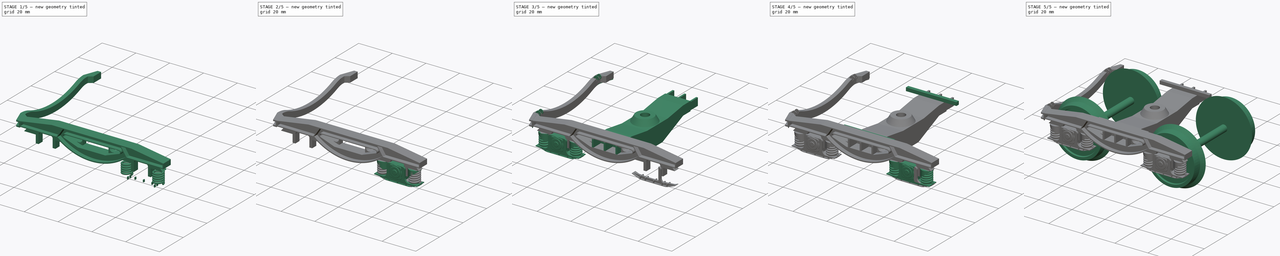
[diagram: build sequence overview — one tinted view per stage of 5, left to right]
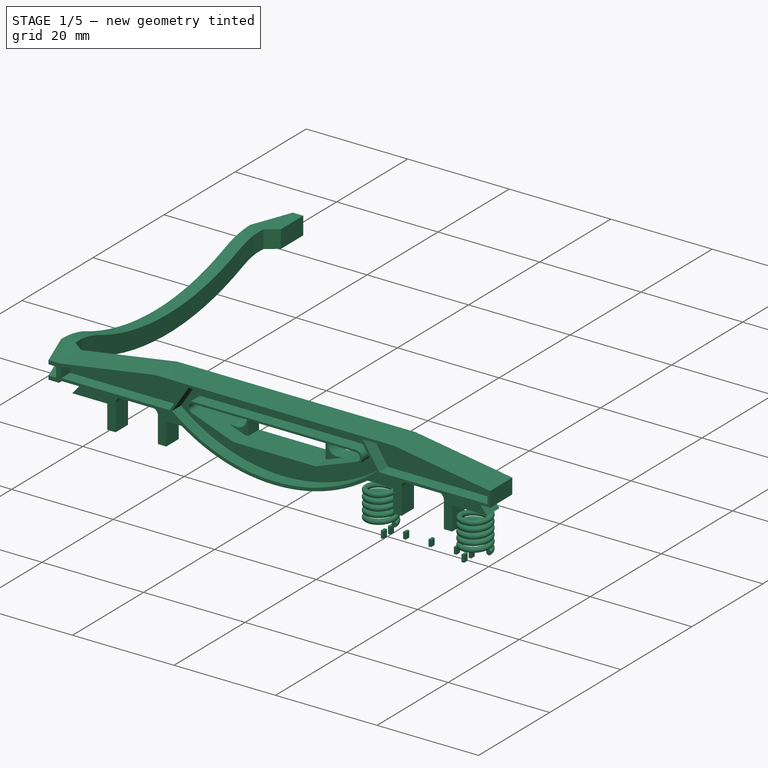
[diagram: stage 1 of 5 — iso view after this stage's code; geometry added in this stage tinted green]
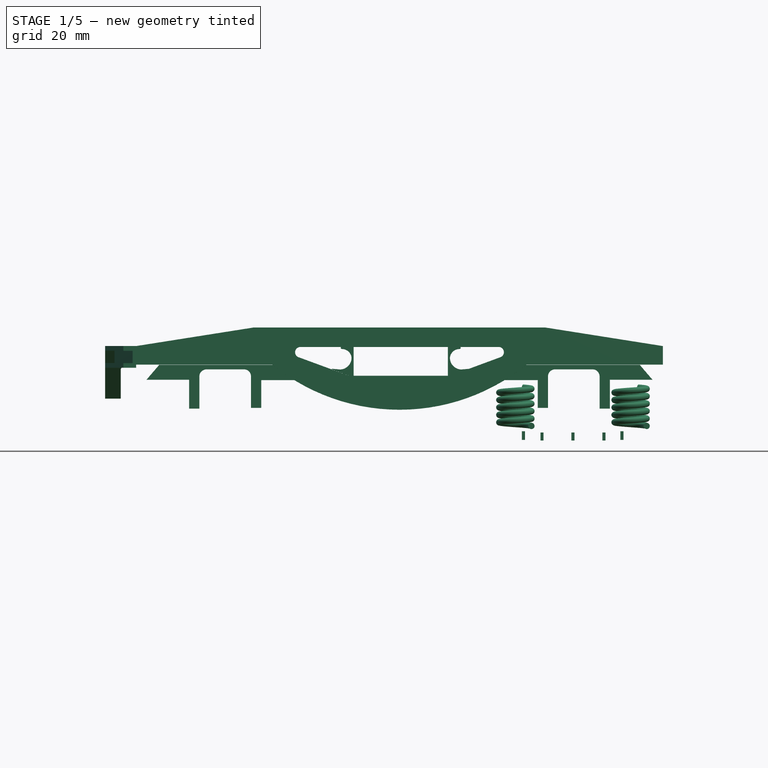
[diagram: stage 1 of 5 — front view after this stage's code; geometry added in this stage tinted green]
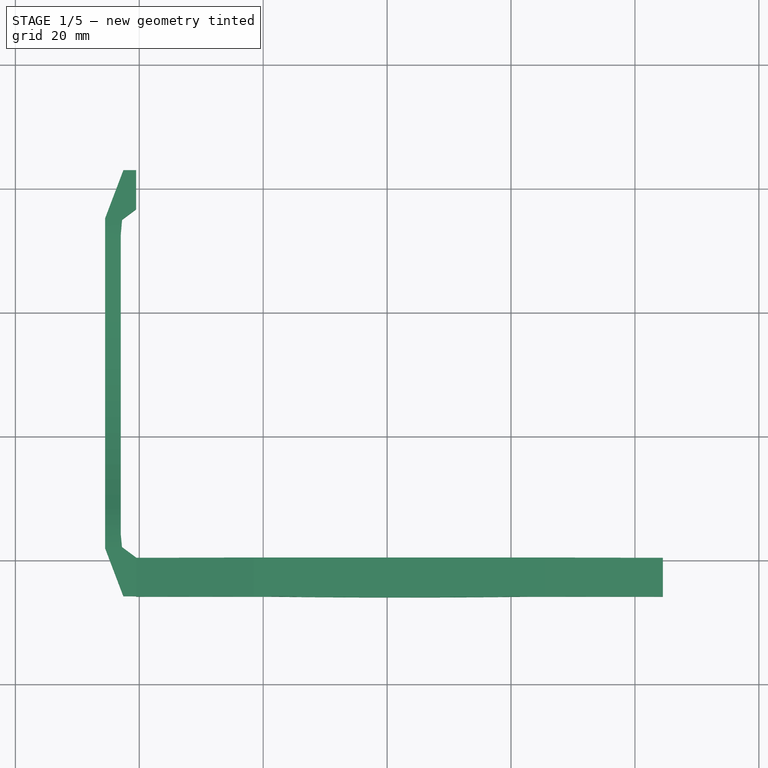
[diagram: stage 1 of 5 — top view after this stage's code; geometry added in this stage tinted green]
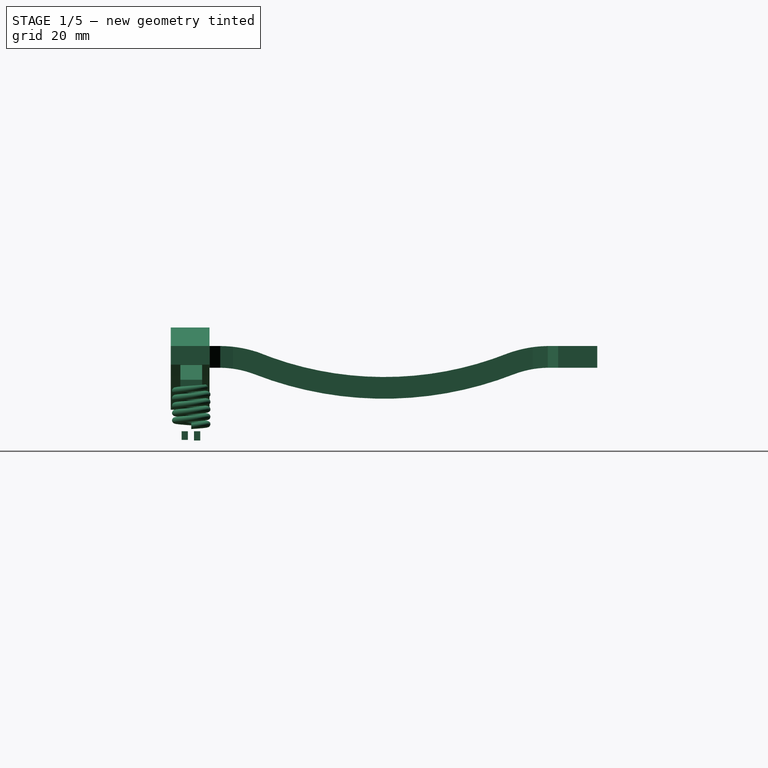
[diagram: stage 1 of 5 — right view after this stage's code; geometry added in this stage tinted green]
FCSTD DOCUMENT  (FreeCAD 0.20R29177 +426 (Git))
Label: Y25 gauge1 scale V3
License: All rights reserved
LicenseURL: http://en.wikipedia.org/wiki/All_rights_reserved
objects: Part::Cylinder×39, Part::Extrusion×32, Part::MultiFuse×24, Part::Box×24, Part::Cut×22, Sketcher::SketchObject×20, Part::Fillet×8, Part::Revolution×5, Part::Helix×4, Part::Sweep×4, Image::ImagePlane×3, Part::FeaturePython×1
note: 183 computed .brp shape members not serialized (recipe doc carries the construction recipe); baked Part::Feature solids carry a one-line shape summary decoded from their .brp

FEATURE [Sketcher::SketchObject] Sketch011
  FullyConstrained = false
  sketch-geometry (14):
    g0: LineSegment StartX=22 StartY=-7.1e-15 StartZ=0 EndX=0 EndY=-7.1e-15 EndZ=0
    g1: LineSegment StartX=0 StartY=-7.1e-15 StartZ=0 EndX=0 EndY=3 EndZ=0
    g2: LineSegment StartX=0 StartY=3 StartZ=0 EndX=19 EndY=6 EndZ=0
    g3: LineSegment StartX=19 StartY=6 StartZ=0 EndX=66 EndY=6 EndZ=0
    g4: LineSegment StartX=66 StartY=6 StartZ=0 EndX=85 EndY=3 EndZ=0
    g5: LineSegment StartX=85 StartY=3 StartZ=0 EndX=85 EndY=7.1e-15 EndZ=0
    g6: LineSegment StartX=85 StartY=7.1e-15 StartZ=0 EndX=63 EndY=7.1e-15 EndZ=0
    g7: LineSegment StartX=26.5 StartY=2.85 StartZ=0 EndX=58.5 EndY=2.85 EndZ=0
    g8: LineSegment StartX=58.8578 StartY=1.22897 StartZ=0 EndX=50.6614 EndY=-1.8 EndZ=0
    g9: LineSegment StartX=50.6614 StartY=-1.8 StartZ=0 EndX=34.364 EndY=-1.8 EndZ=0
    g10: LineSegment StartX=34.364 StartY=-1.8 StartZ=0 EndX=26.164 EndY=1.21922 EndZ=0
    g11: ArcOfCircle CenterX=26.5 CenterY=2 CenterZ=0 NormalX=0 NormalY=0 NormalZ=1 AngleXU=0 Radius=0.85 StartAngle=1.5708 EndAngle=4.30603
    g12: ArcOfCircle CenterX=58.5 CenterY=2 CenterZ=0 NormalX=0 NormalY=0 NormalZ=1 AngleXU=0 Radius=0.85 StartAngle=5.14685 EndAngle=7.85398
    g13: ArcOfCircle CenterX=42.5 CenterY=25.219 CenterZ=0 NormalX=0 NormalY=0 NormalZ=1 AngleXU=0 Radius=32.5 StartAngle=4.02984 EndAngle=5.39493
  constraints (42):
    c: Horizontal(g0)
    c: Coincident(g0,g1)
    c: Vertical(g1)
    c: Coincident(g1,g2)
    c: Coincident(g2,g3)
    c: Horizontal(g3)
    c: Coincident(g3,g4)
    c: Coincident(g4,g5)
    c: Vertical(g5)
    c: Coincident(g5,g6)
    c: Horizontal(g6)
    c: DistanceY(g0,g1) = 3
    c: DistanceX(g0,g0) = 22
    c: DistanceX(g1,g2) = 19
    c: DistanceY(g1,g2) = 3
    c: DistanceX(g2,g3) = 47
    c: DistanceX(g0,g6) = 41
    c: Equal(g1,g5)
    c: Coincident(g-1,g0)
    c: Horizontal(g7)
    c: Coincident(g8,g9)
    c: Horizontal(g9)
    c: Coincident(g9,g10)
    c: Coincident(g11,g7)
    c: Coincident(g11,g10)
    c: Coincident(g12,g7)
    c: Coincident(g12,g8)
    c: Radius(g11) = 0.85
    c: DistanceX(g7,g7) = 32
    c: Vertical(g11,g7)
    c: Vertical(g12,g7)
    c: Equal(g10,g8)
    c: Radius(g12) = 0.85
    c: DistanceY(g9,g7) = 4.65
    c: DistanceX(g0,g11) = 26.5
    c: DistanceY(g0,g11) = 2
    c: Equal(g0,g6)
    c: Coincident(g13,g0)
    c: Coincident(g13,g6)
    c: Radius(g13) = 32.5
    c: DistanceX(g0,g13) = 42.5
    c: DistanceX(g10,g9) = 8.2
FEATURE [Part::Extrusion] Extrude019
  Base = -> Sketch011
  Dir = (0,0,1)
  DirMode = 2
  FaceMakerClass = Part::FaceMakerBullseye
  LengthFwd = 6.25
  LengthRev = 0
  Solid = true
  Symmetric = false
FEATURE [Sketcher::SketchObject] Sketch012  label="Sketch_Side_Cut"
  FullyConstrained = false
  sketch-geometry (20):
    g0: LineSegment StartX=26.5 StartY=3.25 StartZ=0 EndX=58.5 EndY=3.25 EndZ=0
    g1: LineSegment StartX=59 StartY=0.854356 StartZ=0 EndX=50.5 EndY=-2.39564 EndZ=0
    g2: LineSegment StartX=50.5 StartY=-2.39564 StartZ=0 EndX=34.5 EndY=-2.39564 EndZ=0
    g3: LineSegment StartX=34.5 StartY=-2.39564 StartZ=0 EndX=26 EndY=0.854356 EndZ=0
    g4: ArcOfCircle CenterX=26.5 CenterY=2 CenterZ=0 NormalX=0 NormalY=0 NormalZ=1 AngleXU=0 Radius=1.25 StartAngle=1.5708 EndAngle=4.30087
    g5: ArcOfCircle CenterX=58.5 CenterY=2 CenterZ=0 NormalX=0 NormalY=0 NormalZ=1 AngleXU=0 Radius=1.25 StartAngle=5.12391 EndAngle=7.85398
    g6: ArcOfCircle CenterX=42.5 CenterY=25.25 CenterZ=0 NormalX=0 NormalY=0 NormalZ=1 AngleXU=0 Radius=31.9153 StartAngle=4.02908 EndAngle=5.39569
    g7: LineSegment StartX=22.35 StartY=0.5 StartZ=0 EndX=25.6 EndY=5.5 EndZ=0
    g8: LineSegment StartX=25.6 StartY=5.5 StartZ=0 EndX=59.35 EndY=5.5 EndZ=0
    g9: LineSegment StartX=59.35 StartY=5.5 StartZ=0 EndX=62.65 EndY=0.5 EndZ=0
    g10: LineSegment StartX=21.85 StartY=0.5 StartZ=0 EndX=0.5 EndY=0.5 EndZ=0
    g11: LineSegment StartX=0.5 StartY=0.5 StartZ=0 EndX=0.5 EndY=2.5 EndZ=0
    g12: LineSegment StartX=0.5 StartY=2.5 StartZ=0 EndX=19 EndY=5.5 EndZ=0
    g13: LineSegment StartX=19 StartY=5.5 StartZ=0 EndX=25.0686 EndY=5.5 EndZ=0
    g14: LineSegment StartX=25.0686 StartY=5.5 StartZ=0 EndX=21.85 EndY=0.5 EndZ=0
    g15: LineSegment StartX=63.15 StartY=0.5 StartZ=0 EndX=59.8973 EndY=5.5 EndZ=0
    g16: LineSegment StartX=59.8973 StartY=5.5 StartZ=0 EndX=66 EndY=5.5 EndZ=0
    g17: LineSegment StartX=66 StartY=5.5 StartZ=0 EndX=84.5 EndY=2.5 EndZ=0
    g18: LineSegment StartX=84.5 StartY=2.5 StartZ=0 EndX=84.5 EndY=0.5 EndZ=0
    g19: LineSegment StartX=84.5 StartY=0.5 StartZ=0 EndX=63.15 EndY=0.5 EndZ=0
  constraints (61):
    c: Horizontal(g0)
    c: Coincident(g1,g2)
    c: Horizontal(g2)
    c: Coincident(g2,g3)
    c: Coincident(g4,g0)
    c: Coincident(g4,g3)
    c: Coincident(g5,g0)
    c: Coincident(g5,g1)
    c: Radius(g4) = 1.25
    c: DistanceX(g0,g0) = 32
    c: DistanceX(g3,g2) = 8.5
    c: DistanceY(g2,g3) = 3.25
    c: DistanceX(g2,g1) = 16
    c: Equal(g4,g5)
    c: Vertical(g4,g0)
    c: Vertical(g5,g0)
    c: Equal(g3,g1)
    c: DistanceX(g3,g4) = 0.5
    c: DistanceX(g-1,g4) = 26.5
    c: DistanceY(g-1,g4) = 2
    c: DistanceX(g-1,g6) = 42.5
    c: DistanceY(g-1,g6) = 25.25
    c: DistanceX(g6,g6) = 40.3
    c: Coincident(g7,g6)
    c: Coincident(g8,g7)
    c: Horizontal(g8)
    c: Coincident(g9,g8)
    c: Coincident(g9,g6)
    c: DistanceX(g-1,g7) = 25.6
    c: DistanceX(g7,g8) = 33.75
    c: DistanceY(g6,g7) = 5
    c: DistanceX(g-1,g6) = 22.35
    c: DistanceY(g-1,g6) = 0.5
    c: Horizontal(g10)
    c: Coincident(g10,g11)
    c: Vertical(g11)
    c: Coincident(g11,g12)
    c: Coincident(g12,g13)
    c: Horizontal(g13)
    c: Coincident(g13,g14)
    c: Coincident(g14,g10)
    c: DistanceX(g-1,g10) = 0.5
    c: DistanceY(g-1,g10) = 0.5
    c: DistanceY(g10,g11) = 2
    c: DistanceX(g10,g10) = 21.35
    c: DistanceX(g11,g12) = 18.5
    c: Horizontal(g13,g7)
    c: Coincident(g15,g16)
    c: Horizontal(g16)
    c: Coincident(g16,g17)
    c: Coincident(g17,g18)
    c: Vertical(g18)
    c: Coincident(g18,g19)
    c: Coincident(g19,g15)
    c: Horizontal(g19)
    c: DistanceX(g6,g15) = 0.5
    c: DistanceX(g15,g18) = 21.35
    c: DistanceY(g18,g17) = 2
    c: DistanceX(g16,g17) = 18.5
    c: Horizontal(g6,g15)
    c: Horizontal(g8,g15)
FEATURE [Part::Extrusion] Extrude020
  Base = -> Sketch012
  Dir = (0,0,1)
  DirMode = 2
  FaceMakerClass = Part::FaceMakerBullseye
  LengthFwd = 2.5
  LengthRev = 0
  Placement = pos=(0,0,3.75) rot=(0,0,1;0rad)
  Solid = true
  Symmetric = false
FEATURE [Part::Cut] Cut036  label="Seitenträger"
  Base = -> Extrude019
  Placement = pos=(-0.5,-59.8,-1.3e-14) rot=(1,0,0;1.5708rad)
  Tool = -> Extrude020
FEATURE [Part::Extrusion] Extrude027
  Base = -> Sketch019
  Dir = (0,-1,2e-16)
  DirMode = 2
  FaceMakerClass = Part::FaceMakerBullseye
  LengthFwd = 3.5
  LengthRev = 0
  Placement = pos=(0.12,-61,0) rot=(0,0,1;0rad)
  Solid = true
  Symmetric = false
FEATURE [Image::ImagePlane] ImagePlane001
  Placement = pos=(42,-32,-6.4) rot=(-1,0,0;4.71239rad)
  XSize = 101.263
  YSize = 32.1199
FEATURE [Image::ImagePlane] ImagePlane002
  Placement = pos=(0,-31.7,-6.5) rot=(0.57735,0.57735,0.57735;2.0944rad)
  XSize = 74.9263
  YSize = 32.6743
FEATURE [Part::Extrusion] Extrude034
  Base = -> Sketch019
  Dir = (0,-1,2e-16)
  DirMode = 2
  FaceMakerClass = Part::FaceMakerBullseye
  LengthFwd = 3.5
  LengthRev = 0
  Placement = pos=(83.88,-64.6,0) rot=(0,0,1;3.14159rad)
  Solid = true
  Symmetric = false
FEATURE [Part::MultiFuse] Fusion034  label="Seite"
  Shapes = -> [Cut036,Extrude027,Extrude034]
FEATURE [Part::Box] Box048  label="Cube048"
  AttacherType = Attacher::AttachEngine3D
  Height = 1.4
  Length = 0.5
  Placement = pos=(61.75,-64.3,-12.15) rot=(0,0,1;0rad)
  Width = 1
FEATURE [Part::Box] Box049  label="Cube049"
  AttacherType = Attacher::AttachEngine3D
  Height = 1.4
  Length = 0.5
  Placement = pos=(77.65,-64.3,-12.15) rot=(0,0,1;0rad)
  Width = 1
FEATURE [Part::Box] Box050  label="Cube050"
  AttacherType = Attacher::AttachEngine3D
  Height = 1.3
  Length = 0.5
  Placement = pos=(69.75,-64.4,-12.25) rot=(0,0,1;0rad)
  Width = 1
FEATURE [Part::Box] Box051  label="Cube051"
  AttacherType = Attacher::AttachEngine3D
  Height = 1.3
  Length = 0.5
  Placement = pos=(64.75,-64.4,-12.25) rot=(0,0,1;0rad)
  Width = 1
FEATURE [Part::Box] Box052  label="Cube052"
  AttacherType = Attacher::AttachEngine3D
  Height = 1.3
  Length = 0.5
  Placement = pos=(74.75,-64.4,-12.25) rot=(0,0,1;0rad)
  Width = 1
FEATURE [Part::Box] Box053  label="Cube053"
  AttacherType = Attacher::AttachEngine3D
  Height = 1.4
  Length = 0.5
  Placement = pos=(61.75,-64.4,-12.15) rot=(0,0,1;0rad)
  Width = 1
FEATURE [Part::Box] Box054  label="Cube054"
  AttacherType = Attacher::AttachEngine3D
  Height = 1.4
  Length = 0.5
  Placement = pos=(77.65,-64.4,-12.15) rot=(0,0,1;0rad)
  Width = 1
FEATURE [Part::MultiFuse] Fusion050
  Placement = pos=(0,2.1,0) rot=(0,0,1;0rad)
  Shapes = -> [Box050,Box051,Box052,Box053,Box054]
FEATURE [Part::Helix] Helix004
  Angle = 0
  AttacherType = Attacher::AttachEngine3D
  Height = 6.2
  LocalCoord = 0
  Pitch = 1.2
  Radius = 2.6
  SegmentLength = 0
  Style = 1
FEATURE [Part::Helix] Helix005
  Angle = 0
  AttacherType = Attacher::AttachEngine3D
  Height = 6.2
  LocalCoord = 0
  Pitch = 1.2
  Radius = 2.6
  SegmentLength = 0
  Style = 1
FEATURE [Sketcher::SketchObject] Sketch030
  FullyConstrained = true
  Placement = pos=(0,0,0) rot=(1,0,0;1.5708rad)
  sketch-geometry (1):
    g0: Circle CenterX=2.6 CenterY=0 CenterZ=0 NormalX=0 NormalY=0 NormalZ=1 AngleXU=0 Radius=0.5
  constraints (3):
    c: PointOnObject(g0,g-1)
    c: DistanceX(g-1,g0) = 2.6
    c: Radius(g0) = 0.5
FEATURE [Part::Sweep] Sweep004
  Frenet = true
  Placement = pos=(60.7,-62.75,-9.9) rot=(0,0,1;0rad)
  Sections = -> [Sketch030]
  Solid = true
  Spine = -> Helix004 [Edge1]
  Transition = 1
FEATURE [Part::Sweep] Sweep005
  Frenet = true
  Placement = pos=(79.3,-62.75,-9.9) rot=(0,0,1;0rad)
  Sections = -> [Sketch014]
  Solid = true
  Spine = -> Helix005 [Edge1]
  Transition = 1
FEATURE [Sketcher::SketchObject] Sketch033
  FullyConstrained = false
  Placement = pos=(0,0,0) rot=(0.57735,0.57735,0.57735;2.0944rad)
  sketch-geometry (12):
    g0: ArcOfCircle CenterX=-31.699 CenterY=52.0031 CenterZ=0 NormalX=0 NormalY=0 NormalZ=1 AngleXU=0 Radius=57.5 StartAngle=4.34212 EndAngle=5.08585
    g1: LineSegment StartX=-5.32403 StartY=-0.496866 StartZ=0 EndX=2.67597 EndY=-0.496866 EndZ=0
    g2: LineSegment StartX=2.67597 StartY=-0.496866 StartZ=0 EndX=2.67597 EndY=3.00313 EndZ=0
    g3: LineSegment StartX=2.67597 StartY=3.00313 StartZ=0 EndX=-5.32403 EndY=3.00313 EndZ=0
    g4: LineSegment StartX=-58.074 StartY=-0.496866 StartZ=0 EndX=-66.074 EndY=-0.496866 EndZ=0
    g5: LineSegment StartX=-66.074 StartY=-0.496866 StartZ=0 EndX=-66.074 EndY=3.00313 EndZ=0
    g6: LineSegment StartX=-66.074 StartY=3.00313 StartZ=0 EndX=-58.074 EndY=3.00313 EndZ=0
    g7: ArcOfCircle CenterX=-31.699 CenterY=52.0031 CenterZ=0 NormalX=0 NormalY=0 NormalZ=1 AngleXU=0 Radius=54 StartAngle=4.3252 EndAngle=5.08837
    g8: ArcOfCircle CenterX=-58.4166 CenterY=-16.8268 CenterZ=0 NormalX=0 NormalY=0 NormalZ=1 AngleXU=0 Radius=16.3335 StartAngle=1.20053 EndAngle=1.54982
    g9: ArcOfCircle CenterX=-5.00787 CenterY=-16.7101 CenterZ=0 NormalX=0 NormalY=0 NormalZ=1 AngleXU=0 Radius=16.2163 StartAngle=1.59029 EndAngle=1.93083
    g10: ArcOfCircle CenterX=-58.3015 CenterY=-16.7214 CenterZ=0 NormalX=0 NormalY=0 NormalZ=1 AngleXU=0 Radius=19.7258 StartAngle=1.25038 EndAngle=1.55926
    g11: ArcOfCircle CenterX=-5.02273 CenterY=-16.67 CenterZ=0 NormalX=0 NormalY=0 NormalZ=1 AngleXU=0 Radius=19.6754 StartAngle=1.58611 EndAngle=1.92629
  constraints (31):
    c: Coincident(g1,g2)
    c: Vertical(g2)
    c: Coincident(g2,g3)
    c: Horizontal(g3)
    c: Coincident(g4,g5)
    c: Vertical(g5)
    c: Coincident(g5,g6)
    c: Horizontal(g6)
    c: Horizontal(g4)
    c: Horizontal(g1)
    c: DistanceX(g5,g2) = 68.75
    c: DistanceX(g5,g6) = 8
    c: DistanceX(g3,g2) = 8
    c: Radius(g0) = 57.5
    c: DistanceY(g4,g5) = 3.5
    c: DistanceY(g1,g2) = 3.5
    c: DistanceX(g0,g2) = 34.375
    c: Coincident(g7,g0)
    c: Radius(g7) = 54
    c: Equal(g3,g1)
    c: Equal(g6,g4)
    c: Horizontal(g5,g2)
    c: Coincident(g8,g4)
    c: DistanceY(g5,g0) = 49
    c: Tangent(g8,g0) = 1.5708
    c: Coincident(g9,g0)
    c: Coincident(g9,g1)
    c: Coincident(g10,g6)
    c: Coincident(g10,g7)
    c: Coincident(g11,g7)
    c: Coincident(g11,g3)
FEATURE [Part::Extrusion] Extrude057
  Base = -> Sketch033
  Dir = (1,0,0)
  DirMode = 2
  FaceMakerClass = Part::FaceMakerBullseye
  LengthFwd = 5
  LengthRev = 0
  Placement = pos=(-5.5,0.1,0.15) rot=(0,0,1;0rad)
  Solid = true
  Symmetric = false
FEATURE [Sketcher::SketchObject] Sketch036
  FullyConstrained = false
  sketch-geometry (6):
    g0: LineSegment StartX=-0.489114 StartY=-59.7656 StartZ=0 EndX=-2.78506 EndY=-58.0656 EndZ=0
    g1: LineSegment StartX=-2.78506 StartY=-58.0656 StartZ=0 EndX=-2.98911 EndY=-56.0069 EndZ=0
    g2: LineSegment StartX=-2.98911 StartY=-56.0069 StartZ=0 EndX=-2.98911 EndY=-7.60614 EndZ=0
    g3: LineSegment StartX=-2.98911 StartY=-7.60614 StartZ=0 EndX=-2.77235 EndY=-5.21561 EndZ=0
    g4: LineSegment StartX=-2.77235 StartY=-5.21561 StartZ=0 EndX=-0.489114 EndY=-3.51561 EndZ=0
    g5: LineSegment StartX=-0.489114 StartY=-3.51561 StartZ=0 EndX=-0.489114 EndY=-59.7656 EndZ=0
  constraints (12):
    c: Coincident(g0,g1)
    c: Coincident(g1,g2)
    c: Vertical(g2)
    c: Coincident(g2,g3)
    c: Coincident(g3,g4)
    c: Coincident(g4,g5)
    c: Coincident(g5,g0)
    c: Vertical(g5)
    c: DistanceY(g0,g4) = 56.25
    c: DistanceY(g0,g0) = 1.7
    c: DistanceY(g3,g4) = 1.7
    c: DistanceX(g1,g0) = 2.5
FEATURE [Part::Extrusion] Extrude060
  Base = -> Sketch036
  Dir = (0,0,1)
  DirMode = 2
  FaceMakerClass = Part::FaceMakerBullseye
  LengthFwd = 10
  LengthRev = 0
  Placement = pos=(0,0,-6) rot=(0,0,1;0rad)
  Solid = true
  Symmetric = false
FEATURE [Sketcher::SketchObject] Sketch038
  FullyConstrained = false
  Placement = pos=(0,0,0) rot=(0.57735,0.57735,0.57735;2.0944rad)
  sketch-geometry (12):
    g0: ArcOfCircle CenterX=-31.615 CenterY=51.4197 CenterZ=0 NormalX=0 NormalY=0 NormalZ=1 AngleXU=0 Radius=56 StartAngle=4.33963 EndAngle=5.08903
    g1: LineSegment StartX=-5.24003 StartY=0.419738 StartZ=0 EndX=2.75997 EndY=0.419738 EndZ=0
    g2: LineSegment StartX=2.75997 StartY=0.419738 StartZ=0 EndX=2.75997 EndY=2.41974 EndZ=0
    g3: LineSegment StartX=2.75997 StartY=2.41974 StartZ=0 EndX=-5.24003 EndY=2.41974 EndZ=0
    g4: LineSegment StartX=-57.99 StartY=0.419738 StartZ=0 EndX=-65.99 EndY=0.419738 EndZ=0
    g5: LineSegment StartX=-65.99 StartY=0.419738 StartZ=0 EndX=-65.99 EndY=2.41974 EndZ=0
    g6: LineSegment StartX=-65.99 StartY=2.41974 StartZ=0 EndX=-57.99 EndY=2.41974 EndZ=0
    g7: ArcOfCircle CenterX=-31.615 CenterY=51.4197 CenterZ=0 NormalX=0 NormalY=0 NormalZ=1 AngleXU=0 Radius=54 StartAngle=4.32784 EndAngle=5.0807
    g8: ArcOfCircle CenterX=-58.1341 CenterY=-16.3976 CenterZ=0 NormalX=0 NormalY=0 NormalZ=1 AngleXU=0 Radius=16.818 StartAngle=1.19804 EndAngle=1.56223
    g9: ArcOfCircle CenterX=-5.21037 CenterY=-15.8108 CenterZ=0 NormalX=0 NormalY=0 NormalZ=1 AngleXU=0 Radius=16.2306 StartAngle=1.57262 EndAngle=1.93676
    g10: ArcOfCircle CenterX=-58.0701 CenterY=-16.2866 CenterZ=0 NormalX=0 NormalY=0 NormalZ=1 AngleXU=0 Radius=18.7065 StartAngle=1.23311 EndAngle=1.56652
    g11: ArcOfCircle CenterX=-5.1284 CenterY=-16.2634 CenterZ=0 NormalX=0 NormalY=0 NormalZ=1 AngleXU=0 Radius=18.6834 StartAngle=1.57677 EndAngle=1.9574
  constraints (31):
    c: Coincident(g1,g2)
    c: Vertical(g2)
    c: Coincident(g2,g3)
    c: Horizontal(g3)
    c: Coincident(g4,g5)
    c: Vertical(g5)
    c: Coincident(g5,g6)
    c: Horizontal(g6)
    c: Horizontal(g4)
    c: Horizontal(g1)
    c: DistanceX(g5,g2) = 68.75
    c: DistanceX(g5,g6) = 8
    c: DistanceX(g3,g2) = 8
    c: DistanceY(g4,g5) = 2
    c: DistanceX(g0,g2) = 34.375
    c: Coincident(g7,g0)
    c: Radius(g7) = 54
    c: Equal(g3,g1)
    c: Equal(g6,g4)
    c: Horizontal(g5,g2)
    c: Coincident(g8,g4)
    c: DistanceY(g5,g0) = 49
    c: Tangent(g8,g0) = 1.5708
    c: Coincident(g9,g0)
    c: Coincident(g9,g1)
    c: Coincident(g10,g6)
    c: Coincident(g10,g7)
    c: Coincident(g11,g7)
    c: Coincident(g11,g3)
    c: Radius(g0) = 56
    c: DistanceY(g1,g2) = 2
FEATURE [Part::Extrusion] Extrude063
  Base = -> Sketch038
  Dir = (1,0,0)
  DirMode = 2
  FaceMakerClass = Part::FaceMakerBullseye
  LengthFwd = 3
  LengthRev = 0
  Placement = pos=(-7,0,0) rot=(0,0,1;0rad)
  Solid = true
  Symmetric = false
FEATURE [Part::Cut] Cut060
  Base = -> Extrude057
  Tool = -> Extrude060
FEATURE [Part::Cut] Cut061
  Base = -> Cut060
  Tool = -> Extrude063
FEATURE [Sketcher::SketchObject] Sketch039
  FullyConstrained = false
  sketch-geometry (3):
    g0: LineSegment StartX=-0.523418 StartY=-66.074 StartZ=0 EndX=-3.58877 EndY=-58.006 EndZ=0
    g1: LineSegment StartX=-3.58877 StartY=-58.006 StartZ=0 EndX=-3.58877 EndY=-66.074 EndZ=0
    g2: LineSegment StartX=-3.58877 StartY=-66.074 StartZ=0 EndX=-0.523418 EndY=-66.074 EndZ=0
  constraints (5):
    c: Coincident(g0,g1)
    c: Vertical(g1)
    c: Coincident(g1,g2)
    c: Coincident(g2,g0)
    c: Horizontal(g2)
FEATURE [Part::Extrusion] Extrude064
  Base = -> Sketch039
  Dir = (0,0,1)
  DirMode = 2
  FaceMakerClass = Part::FaceMakerBullseye
  LengthFwd = 5
  LengthRev = 0
  Placement = pos=(-2,0,-1) rot=(0,0,1;0rad)
  Solid = true
  Symmetric = false
FEATURE [Part::Extrusion] Extrude066
  Base = -> Sketch039
  Dir = (0,0,1)
  DirMode = 2
  FaceMakerClass = Part::FaceMakerBullseye
  LengthFwd = 5
  LengthRev = 0
  Placement = pos=(-2,-63.2,3.5) rot=(1,0,0;3.14159rad)
  Solid = true
  Symmetric = false
FEATURE [Sketcher::SketchObject] Sketch037
  FullyConstrained = false
  sketch-geometry (3):
    g0: LineSegment StartX=-0.523418 StartY=-66.074 StartZ=0 EndX=-3.58877 EndY=-58.006 EndZ=0
    g1: LineSegment StartX=-3.58877 StartY=-58.006 StartZ=0 EndX=-3.58877 EndY=-66.074 EndZ=0
    g2: LineSegment StartX=-3.58877 StartY=-66.074 StartZ=0 EndX=-0.523418 EndY=-66.074 EndZ=0
  constraints (5):
    c: Coincident(g0,g1)
    c: Vertical(g1)
    c: Coincident(g1,g2)
    c: Coincident(g2,g0)
    c: Horizontal(g2)
FEATURE [Part::Extrusion] Extrude061
  Base = -> Sketch037
  Dir = (0,0,1)
  DirMode = 2
  FaceMakerClass = Part::FaceMakerBullseye
  LengthFwd = 2
  LengthRev = 0
  Placement = pos=(-0.5,0,0.4) rot=(0,0,1;0rad)
  Solid = true
  Symmetric = false
FEATURE [Part::Extrusion] Extrude065
  Base = -> Sketch037
  Dir = (0,0,1)
  DirMode = 2
  FaceMakerClass = Part::FaceMakerBullseye
  LengthFwd = 2
  LengthRev = 0
  Placement = pos=(-0.5,-63.2,2.45) rot=(1,0,0;3.14159rad)
  Solid = true
  Symmetric = false
FEATURE [Part::MultiFuse] Fusion055
  Shapes = -> [Extrude061,Extrude065]
FEATURE [Part::Cut] Cut062
  Base = -> Cut061
  Tool = -> Fusion055
FEATURE [Part::MultiFuse] Fusion056
  Shapes = -> [Extrude066,Extrude064]
FEATURE [Part::Cut] Cut063  label="Endverbindung"
  Base = -> Cut062
  Placement = pos=(0,0,-0.15) rot=(0,0,1;0rad)
  Tool = -> Fusion056
FEATURE [Sketcher::SketchObject] Sketch040
  FullyConstrained = false
  Placement = pos=(0,0,0) rot=(1,0,0;1.5708rad)
  sketch-geometry (9):
    g0: LineSegment StartX=32.5795 StartY=2.85595 StartZ=0 EndX=34.5989 EndY=2.85595 EndZ=0
    g1: LineSegment StartX=34.5989 StartY=2.85595 StartZ=0 EndX=34.5989 EndY=-1.79918 EndZ=0
    g2: LineSegment StartX=34.5989 StartY=-1.79918 StartZ=0 EndX=33.8726 EndY=-1.79918 EndZ=0
    g3: LineSegment StartX=33.8726 StartY=-1.79918 StartZ=0 EndX=31.0755 EndY=-0.756428 EndZ=0
    g4: ArcOfCircle CenterX=32.7238 CenterY=0.975441 CenterZ=0 NormalX=0 NormalY=0 NormalZ=1 AngleXU=0 Radius=1.542 StartAngle=0.0838679 EndAngle=1.57716
    g5: ArcOfCircle CenterX=32.3738 CenterY=1.10501 CenterZ=0 NormalX=0 NormalY=0 NormalZ=1 AngleXU=0 Radius=1.8866 StartAngle=4.71922 EndAngle=6.28297
    g6: ArcOfCircle CenterX=32.7156 CenterY=2.71405 CenterZ=0 NormalX=0 NormalY=0 NormalZ=1 AngleXU=0 Radius=0.196645 StartAngle=2.33542 EndAngle=4.70432
    g7: LineSegment StartX=32.3867 StartY=-0.781542 StartZ=0 EndX=31.1721 EndY=-0.672237 EndZ=0
    g8: ArcOfCircle CenterX=31.1778 CenterY=-0.776295 CenterZ=0 NormalX=0 NormalY=0 NormalZ=1 AngleXU=0 Radius=0.104213 StartAngle=1.62526 EndAngle=2.94978
  constraints (12):
    c: Horizontal(g0)
    c: Coincident(g0,g1)
    c: Vertical(g1)
    c: Coincident(g1,g2)
    c: Horizontal(g2)
    c: Coincident(g2,g3)
    c: Coincident(g5,g4)
    c: Coincident(g6,g4)
    c: Coincident(g6,g0)
    c: Coincident(g7,g5)
    c: Coincident(g8,g7)
    c: Coincident(g8,g3)
FEATURE [Part::Extrusion] Extrude067
  Base = -> Sketch040
  Dir = (0,-1,-3e-16)
  DirMode = 2
  FaceMakerClass = Part::FaceMakerBullseye
  LengthFwd = 3
  LengthRev = 0
  Placement = pos=(0,-59.8,0) rot=(0,0,1;0rad)
  Solid = true
  Symmetric = false
FEATURE [Part::Extrusion] Extrude068
  Base = -> Sketch040
  Dir = (0,-1,-3e-16)
  DirMode = 2
  FaceMakerClass = Part::FaceMakerBullseye
  LengthFwd = 3
  LengthRev = 0
  Placement = pos=(84.4,-62.8,0) rot=(0,0,1;3.14159rad)
  Solid = true
  Symmetric = false
FEATURE [Part::MultiFuse] Fusion058  label="Seitentraeger"
  Shapes = -> [Fusion034,Extrude068,Extrude067]
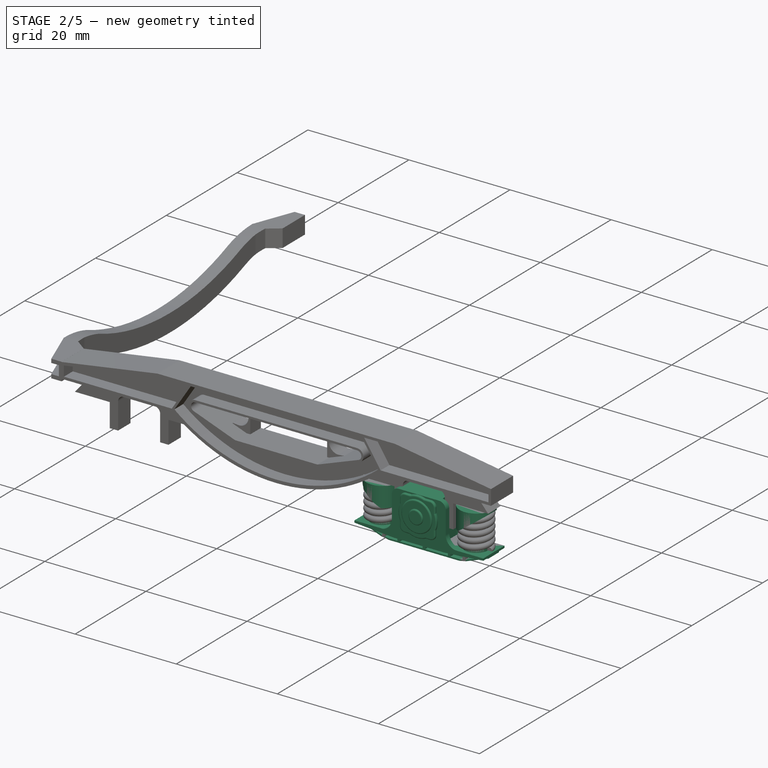
[diagram: stage 2 of 5 — iso view after this stage's code; geometry added in this stage tinted green]
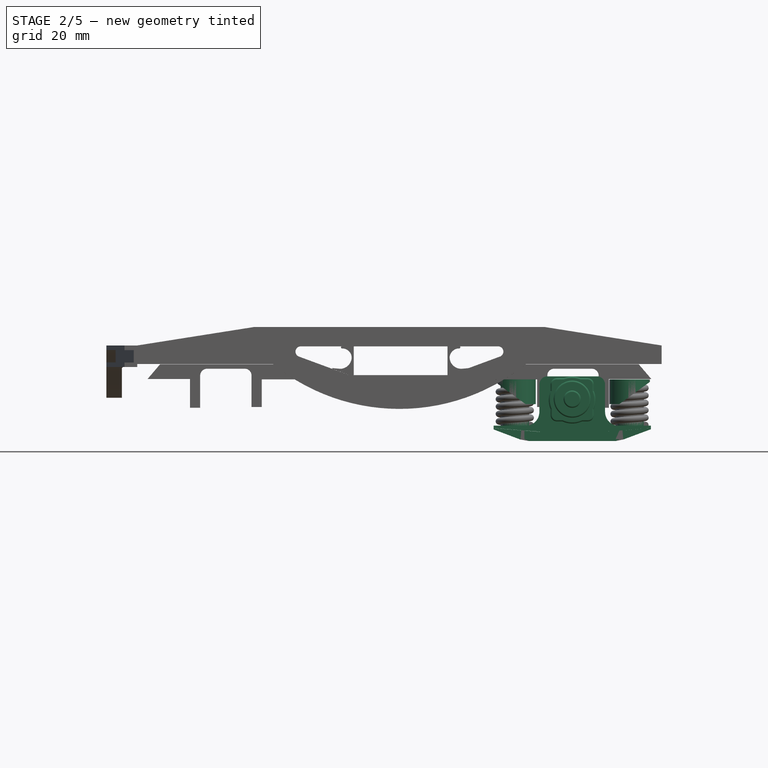
[diagram: stage 2 of 5 — front view after this stage's code; geometry added in this stage tinted green]
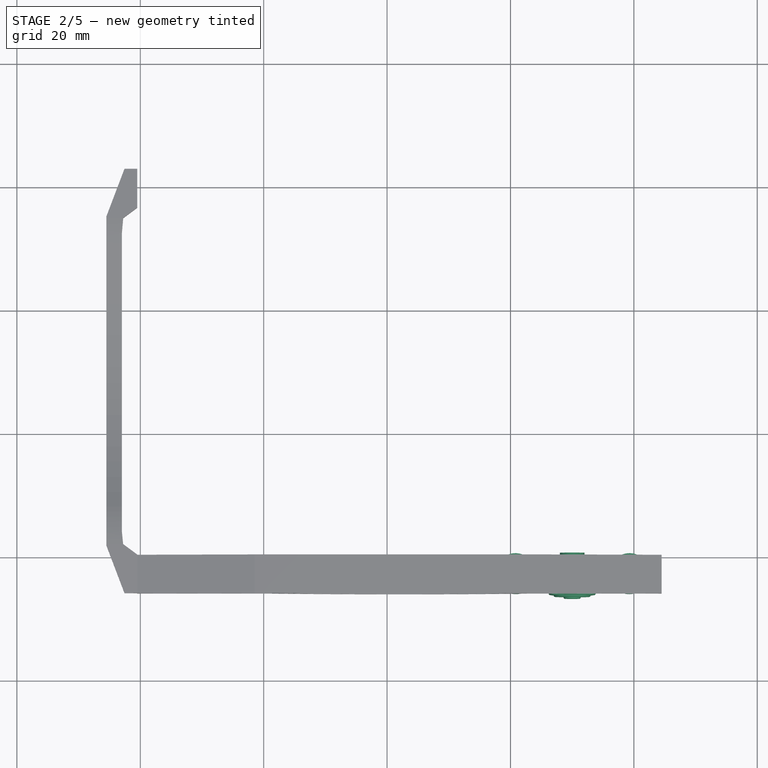
[diagram: stage 2 of 5 — top view after this stage's code; geometry added in this stage tinted green]
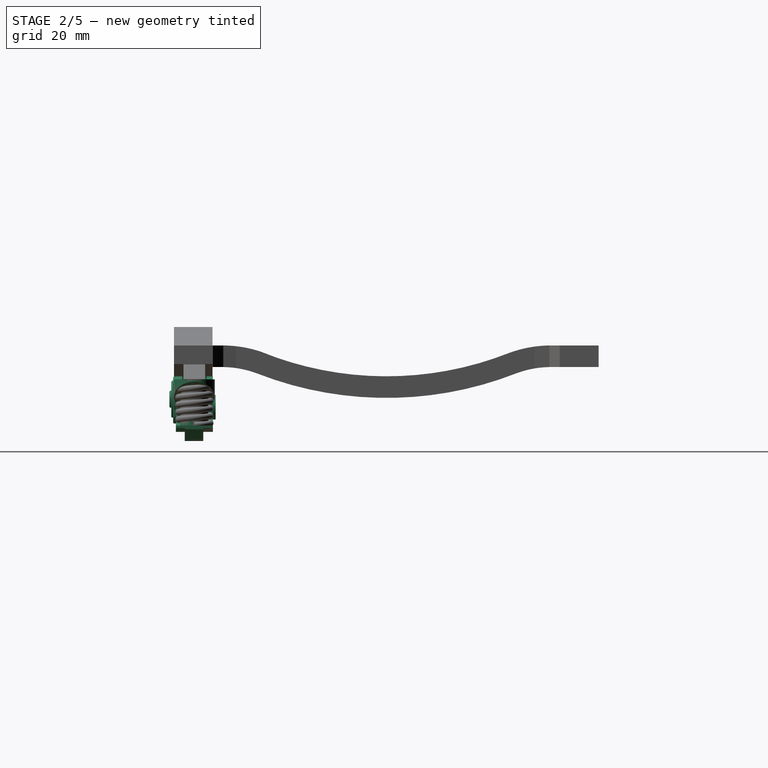
[diagram: stage 2 of 5 — right view after this stage's code; geometry added in this stage tinted green]
FEATURE [Part::Box] Box044  label="Cube044"
  AttacherType = Attacher::AttachEngine3D
  Height = 7
  Length = 7
  Placement = pos=(66.5,-0.5,-9.3) rot=(0,0,1;0rad)
  Width = 0.5
FEATURE [Part::Box] Box045  label="Cube045"
  AttacherType = Attacher::AttachEngine3D
  Height = 1.3
  Length = 0.5
  Placement = pos=(69.75,-64.3,-12.25) rot=(0,0,1;0rad)
  Width = 1
FEATURE [Part::Box] Box046  label="Cube046"
  AttacherType = Attacher::AttachEngine3D
  Height = 1.3
  Length = 0.5
  Placement = pos=(64.75,-64.3,-12.25) rot=(0,0,1;0rad)
  Width = 1
FEATURE [Part::Box] Box047  label="Cube047"
  AttacherType = Attacher::AttachEngine3D
  Height = 1.3
  Length = 0.5
  Placement = pos=(74.75,-64.3,-12.25) rot=(0,0,1;0rad)
  Width = 1
FEATURE [Part::Cylinder] Cylinder075
  Angle = 360
  AttacherType = Attacher::AttachEngine3D
  FirstAngle = 0
  Height = 5
  Placement = pos=(70,-64.3,-7) rot=(-1,0,0;1.5708rad)
  Radius = 2
  SecondAngle = 0
FEATURE [Part::Cylinder] Cylinder076
  Angle = 360
  AttacherType = Attacher::AttachEngine3D
  FirstAngle = 0
  Height = 0.3
  Placement = pos=(70,-0.8,-5.7) rot=(1,0,0;1.5708rad)
  Radius = 1.4
  SecondAngle = 0
FEATURE [Part::Cylinder] Cylinder077
  Angle = 360
  AttacherType = Attacher::AttachEngine3D
  FirstAngle = 0
  Height = 0.3
  Placement = pos=(70,-0.5,-5.7) rot=(1,0,0;1.5708rad)
  Radius = 3
  SecondAngle = 0
FEATURE [Part::Cylinder] Cylinder078
  Angle = 360
  AttacherType = Attacher::AttachEngine3D
  FirstAngle = 0
  Height = 0.5
  Placement = pos=(70,0,-5.85) rot=(1,0,0;1.5708rad)
  Radius = 3.8
  SecondAngle = 0
FEATURE [Part::Cylinder] Cylinder079
  Angle = 360
  AttacherType = Attacher::AttachEngine3D
  FirstAngle = 0
  Height = 4
  Placement = pos=(79.3,-62.75,-2.5) rot=(0,1,0;3.14159rad)
  Radius = 3.3
  SecondAngle = 0
FEATURE [Part::Cylinder] Cylinder080
  Angle = 360
  AttacherType = Attacher::AttachEngine3D
  FirstAngle = 0
  Height = 3
  Placement = pos=(79.6864,-62.75,-5.0153) rot=(0,-1,0;3.76991rad)
  Radius = 4.3
  SecondAngle = 0
FEATURE [Part::Cut] Cut054
  Base = -> Cylinder079
  Tool = -> Cylinder080
FEATURE [Part::Cylinder] Cylinder081
  Angle = 360
  AttacherType = Attacher::AttachEngine3D
  FirstAngle = 0
  Height = 4
  Placement = pos=(79.3,-62.75,-2.5) rot=(0,1,0;3.14159rad)
  Radius = 3.3
  SecondAngle = 0
FEATURE [Part::Cylinder] Cylinder082
  Angle = 360
  AttacherType = Attacher::AttachEngine3D
  FirstAngle = 0
  Height = 3
  Placement = pos=(79.6864,-62.75,-5.0153) rot=(0,-1,0;3.76991rad)
  Radius = 4.3
  SecondAngle = 0
FEATURE [Part::Cut] Cut055
  Base = -> Cylinder081
  Placement = pos=(140.1,-125.5,0) rot=(0,0,1;3.14159rad)
  Tool = -> Cylinder082
FEATURE [Part::Cylinder] Cylinder083
  Angle = 360
  AttacherType = Attacher::AttachEngine3D
  FirstAngle = 0
  Height = 7
  Placement = pos=(60.7,-62.75,-10) rot=(0,0,1;0rad)
  Radius = 2.3
  SecondAngle = 0
FEATURE [Part::Cylinder] Cylinder084
  Angle = 360
  AttacherType = Attacher::AttachEngine3D
  FirstAngle = 0
  Height = 7
  Placement = pos=(79.3,-62.75,-10) rot=(0,0,1;0rad)
  Radius = 2.3
  SecondAngle = 0
FEATURE [Part::Extrusion] Extrude047
  Base = -> Sketch007
  Dir = (0,-1,2e-16)
  DirMode = 2
  FaceMakerClass = Part::FaceMakerBullseye
  LengthFwd = 6
  LengthRev = 0
  Placement = pos=(0,-59.75,0) rot=(0,0,1;0rad)
  Solid = true
  Symmetric = false
FEATURE [Part::Extrusion] Extrude048
  Base = -> Sketch
  Dir = (0,-1,-6e-16)
  DirMode = 2
  FaceMakerClass = Part::FaceMakerBullseye
  LengthFwd = 1
  LengthRev = 0
  Placement = pos=(0,-62.3,0) rot=(0,0,1;0rad)
  Solid = true
  Symmetric = false
FEATURE [Part::Extrusion] Extrude049
  Base = -> Sketch021
  Dir = (0,-1,-3e-16)
  DirMode = 2
  FaceMakerClass = Part::FaceMakerBullseye
  LengthFwd = 3
  LengthRev = 0
  Placement = pos=(0,-61.3,0.05) rot=(0,0,1;0rad)
  Solid = true
  Symmetric = false
FEATURE [Part::Extrusion] Extrude050
  Base = -> Sketch029
  Dir = (0,-1,-3e-16)
  DirMode = 2
  FaceMakerClass = Part::FaceMakerBullseye
  LengthFwd = 1
  LengthRev = 0
  Placement = pos=(-0.13,-59.75,-0.19) rot=(0,0,1;0rad)
  Solid = true
  Symmetric = false
FEATURE [Part::Extrusion] Extrude051
  Base = -> Sketch029
  Dir = (0,-1,-3e-16)
  DirMode = 2
  FaceMakerClass = Part::FaceMakerBullseye
  LengthFwd = 1
  LengthRev = 0
  Placement = pos=(-0.13,-64.75,-0.19) rot=(0,0,1;0rad)
  Solid = true
  Symmetric = false
FEATURE [Part::Extrusion] Extrude052
  Base = -> Sketch029
  Dir = (0,-1,-3e-16)
  DirMode = 2
  FaceMakerClass = Part::FaceMakerBullseye
  LengthFwd = 1
  LengthRev = 0
  Placement = pos=(140.14,-60.75,-0.19) rot=(0,0,1;3.14159rad)
  Solid = true
  Symmetric = false
FEATURE [Part::Extrusion] Extrude053
  Base = -> Sketch029
  Dir = (0,-1,-3e-16)
  DirMode = 2
  FaceMakerClass = Part::FaceMakerBullseye
  LengthFwd = 1
  LengthRev = 0
  Placement = pos=(140.14,-65.75,-0.19) rot=(0,0,1;3.14159rad)
  Solid = true
  Symmetric = false
FEATURE [Part::MultiFuse] Fusion048
  Shapes = -> [Cylinder078,Box044,Cylinder077,Cylinder076]
FEATURE [Part::Fillet] Fillet013
  Base = -> Fusion048
  Edges = 4 edges r=1: [Edge8,Edge33,Edge55,Edge58]
FEATURE [Part::Fillet] Fillet014
  Base = -> Fillet013
  Edges = 1 edges r=0.25: [Edge47]
FEATURE [Part::Fillet] Fillet015
  Base = -> Fillet014
  Edges = 1 edges r=0.25: [Edge33]
FEATURE [Part::Fillet] Fillet016  label="Abdeckung002"
  Base = -> Fillet015
  Edges = 16 edges r=0.25: [Edge19,Edge21,Edge22,Edge23,Edge24,Edge25,Edge26,Edge27,Edge28,Edge29,Edge30,Edge31,Edge32,Edge33,Edge34,Edge35]
  Placement = pos=(0,-65.7,0) rot=(0,0,1;0rad)
FEATURE [Part::MultiFuse] Fusion049
  Shapes = -> [Box045,Box046,Box047,Box048,Box049]
FEATURE [Part::MultiFuse] Fusion053  label="Kufe001"
  Shapes = -> [Extrude049,Fusion049,Extrude048,Fusion050]
FEATURE [Part::MultiFuse] Fusion051
  Shapes = -> [Cut055,Sweep004,Cylinder083]
FEATURE [Part::MultiFuse] Fusion052
  Shapes = -> [Sweep005,Cylinder084,Cut054]
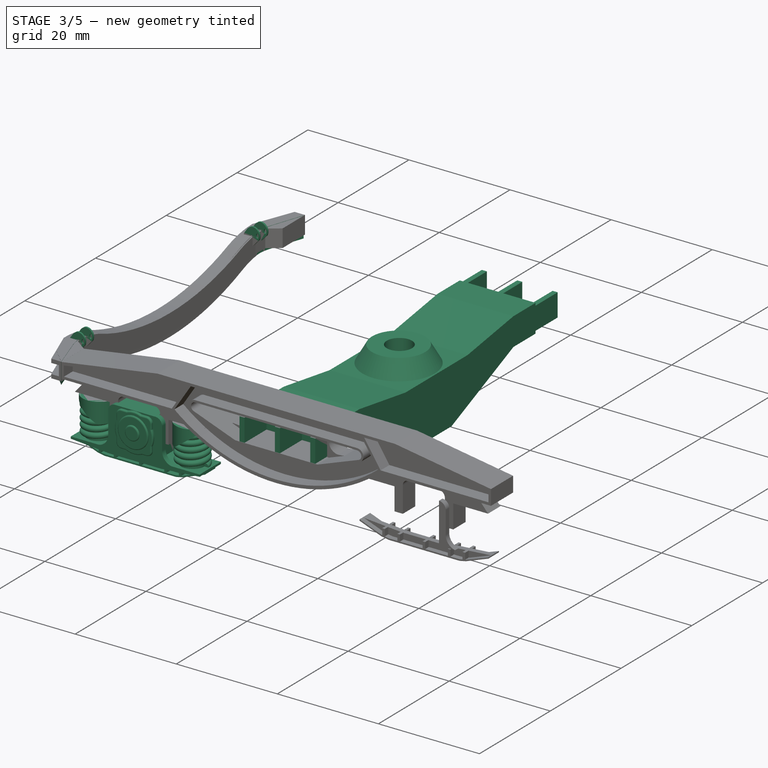
[diagram: stage 3 of 5 — iso view after this stage's code; geometry added in this stage tinted green]
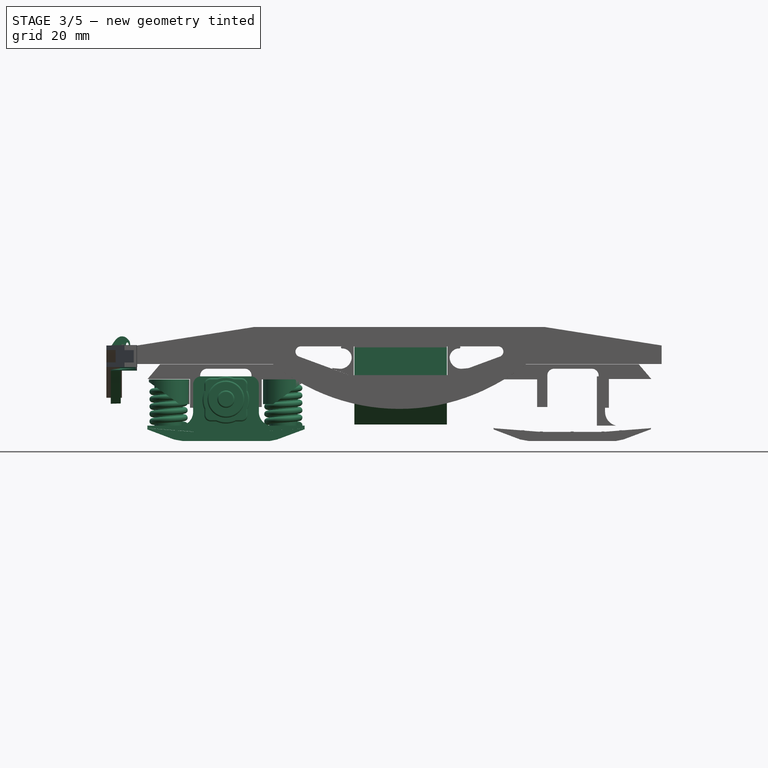
[diagram: stage 3 of 5 — front view after this stage's code; geometry added in this stage tinted green]
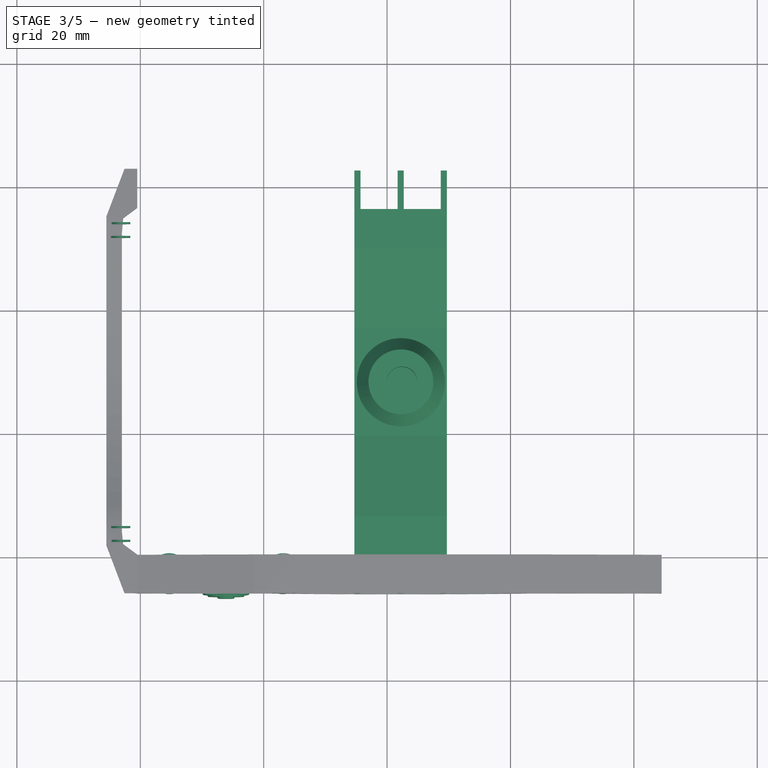
[diagram: stage 3 of 5 — top view after this stage's code; geometry added in this stage tinted green]
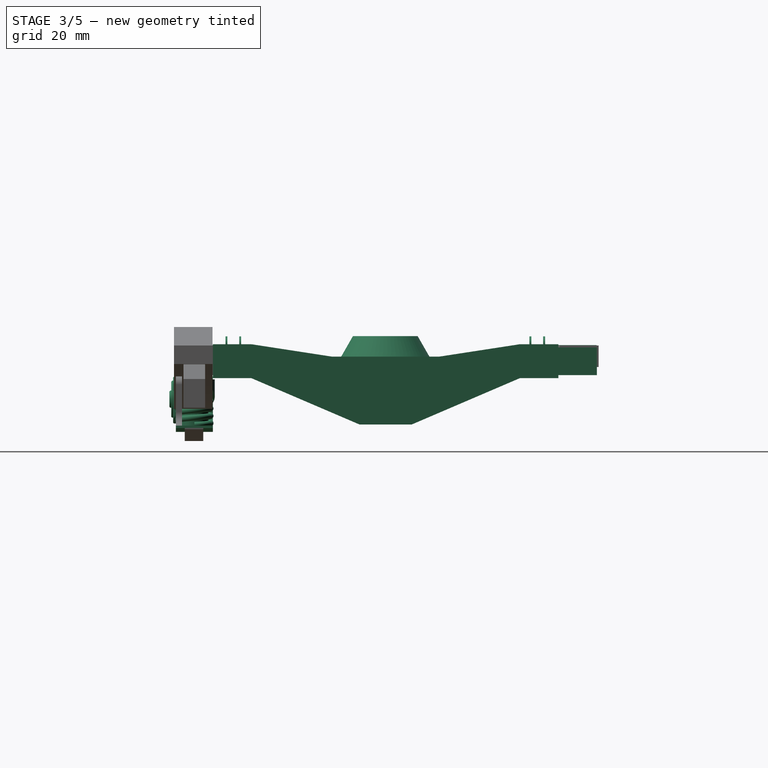
[diagram: stage 3 of 5 — right view after this stage's code; geometry added in this stage tinted green]
FEATURE [Sketcher::SketchObject] Sketch002
  FullyConstrained = true
  MapMode = 5
  sketch-geometry (20):
    g0: LineSegment StartX=5.5 StartY=-12.5 StartZ=0 EndX=3.5 EndY=-25.5 EndZ=0
    g1: LineSegment StartX=3.5 StartY=-25.5 StartZ=0 EndX=3.5 EndY=-43 EndZ=0
    g2: LineSegment StartX=3.5 StartY=-43 StartZ=0 EndX=5.5 EndY=-56 EndZ=0
    g3: LineSegment StartX=0 StartY=-56 StartZ=0 EndX=-7.5 EndY=-38.5 EndZ=0
    g4: LineSegment StartX=-7.5 StartY=-38.5 StartZ=0 EndX=-7.5 EndY=-30 EndZ=0
    g5: LineSegment StartX=-7.5 StartY=-30 StartZ=0 EndX=0 EndY=-12.5 EndZ=0
    g6: LineSegment StartX=0 StartY=-56 StartZ=0 EndX=0 EndY=-62.25 EndZ=0
    g7: LineSegment StartX=0 StartY=-62.25 StartZ=0 EndX=0.5 EndY=-62.25 EndZ=0
    g8: LineSegment StartX=0.5 StartY=-62.25 StartZ=0 EndX=0.5 EndY=-68.5 EndZ=0
    g9: LineSegment StartX=0.5 StartY=-68.5 StartZ=0 EndX=5 EndY=-68.5 EndZ=0
    g10: LineSegment StartX=5 StartY=-68.5 StartZ=0 EndX=5 EndY=-62.25 EndZ=0
    g11: LineSegment StartX=0 StartY=-12.5 StartZ=0 EndX=0 EndY=-6.25 EndZ=0
    g12: LineSegment StartX=0 StartY=-6.25 StartZ=0 EndX=0.5 EndY=-6.25 EndZ=0
    g13: LineSegment StartX=0.5 StartY=-6.25 StartZ=0 EndX=0.5 EndY=0 EndZ=0
    g14: LineSegment StartX=0.5 StartY=0 StartZ=0 EndX=5 EndY=0 EndZ=0
    g15: LineSegment StartX=5 StartY=0 StartZ=0 EndX=5 EndY=-6.25 EndZ=0
    g16: LineSegment StartX=5.5 StartY=-12.5 StartZ=0 EndX=5.5 EndY=-6.25 EndZ=0
    g17: LineSegment StartX=5.5 StartY=-6.25 StartZ=0 EndX=5 EndY=-6.25 EndZ=0
    g18: LineSegment StartX=5.5 StartY=-56 StartZ=0 EndX=5.5 EndY=-62.25 EndZ=0
    g19: LineSegment StartX=5.5 StartY=-62.25 StartZ=0 EndX=5 EndY=-62.25 EndZ=0
  constraints (60):
    c: Coincident(g0,g1)
    c: Vertical(g1)
    c: Coincident(g1,g2)
    c: Coincident(g3,g4)
    c: Vertical(g4)
    c: Coincident(g4,g5)
    c: DistanceY(g2,g1) = 13
    c: DistanceY(g3,g3) = 17.5
    c: DistanceY(g1,g1) = 17.5
    c: DistanceX(g3,g3) = 7.5
    c: DistanceX(g4,g0) = 11
    c: Coincident(g3,g6)
    c: PointOnObject(g6,g-2)
    c: Vertical(g6)
    c: Coincident(g6,g7)
    c: Horizontal(g7)
    c: Coincident(g7,g8)
    c: Vertical(g8)
    c: DistanceX(g6,g7) = 0.5
    c: Coincident(g8,g9)
    c: Horizontal(g9)
    c: Coincident(g9,g10)
    c: Vertical(g10)
    c: DistanceY(g3,g4) = 8.5
    c: Coincident(g5,g11)
    c: PointOnObject(g11,g-2)
    c: Vertical(g11)
    c: Coincident(g11,g12)
    c: Horizontal(g12)
    c: Coincident(g12,g13)
    c: PointOnObject(g13,g-1)
    c: Vertical(g13)
    c: Coincident(g13,g14)
    c: PointOnObject(g14,g-1)
    c: Coincident(g14,g15)
    c: Vertical(g15)
    c: Equal(g9,g14)
    c: Equal(g7,g12)
    c: Horizontal(g15,g12)
    c: Coincident(g0,g16)
    c: Vertical(g16)
    c: Coincident(g16,g17)
    c: Coincident(g17,g15)
    c: Horizontal(g17)
    c: Coincident(g2,g18)
    c: Vertical(g18)
    c: Coincident(g18,g19)
    c: Coincident(g19,g10)
    c: Horizontal(g19)
    c: Horizontal(g7,g10)
    c: Horizontal(g3,g2)
    c: DistanceY(g8,g7) = 6.25
    c: DistanceY(g6,g3) = 6.25
    c: DistanceX(g6,g18) = 5.5
    c: Equal(g7,g19)
    c: DistanceY(g4,g5) = 17.5
    c: DistanceY(g5,g11) = 6.25
    c: DistanceY(g13,g13) = 6.25
    c: DistanceY(g0,g0) = 13
    c: Equal(g12,g17)
FEATURE [Part::Extrusion] Extrude
  Base = -> Sketch002
  Dir = (0,0,1)
  DirMode = 2
  FaceMakerClass = Part::FaceMakerBullseye
  LengthFwd = 1
  LengthRev = 0
  Placement = pos=(49.7,1,-2.3) rot=(0,-1,0;1.5708rad)
  Solid = true
  Symmetric = false
FEATURE [Sketcher::SketchObject] Sketch003
  FullyConstrained = false
  Placement = pos=(0,0,0) rot=(1,0,0;1.5708rad)
  sketch-geometry (4):
    g0: LineSegment StartX=1.91987 StartY=-28.0904 StartZ=0 EndX=1.91987 EndY=-35.3404 EndZ=0
    g1: LineSegment StartX=5.41987 StartY=-35.3404 StartZ=0 EndX=5.41987 EndY=-30.0904 EndZ=0
    g2: LineSegment StartX=5.41987 StartY=-30.0904 StartZ=0 EndX=1.91987 EndY=-28.0904 EndZ=0
    g3: LineSegment StartX=1.91987 StartY=-35.3404 StartZ=0 EndX=5.41987 EndY=-35.3404 EndZ=0
  constraints (10):
    c: Vertical(g0)
    c: Vertical(g1)
    c: Coincident(g1,g2)
    c: Coincident(g2,g0)
    c: DistanceX(g0,g1) = 3.5
    c: DistanceY(g0,g0) = 7.25
    c: DistanceY(g1,g1) = 5.25
    c: Coincident(g3,g0)
    c: Coincident(g3,g1)
    c: Horizontal(g3)
FEATURE [Part::Revolution] Revolve
  Angle = 360
  Axis = (1,0,0)
  AxisLink = -> Sketch003 [Edge2]
  Base = (5.41987,-7.8e-15,-35.3404)
  FaceMakerClass = Part::FaceMakerBullseye
  Placement = pos=(6.9,-33.3,-0.9) rot=(0,-1,0;1.5708rad)
  Solid = true
  Source = -> Sketch003
  Symmetric = false
FEATURE [Part::Cylinder] Cylinder
  Angle = 360
  AttacherType = Attacher::AttachEngine3D
  FirstAngle = 0
  Height = 6
  Placement = pos=(42.4,-33.3,-0.5) rot=(0,0,1;0rad)
  Radius = 2.5
  SecondAngle = 0
FEATURE [Part::Extrusion] Extrude022
  Base = -> Sketch002
  Dir = (0,0,1)
  DirMode = 2
  FaceMakerClass = Part::FaceMakerBullseye
  LengthFwd = 1
  LengthRev = 0
  Placement = pos=(35.7,1,-2.3) rot=(0,-1,0;1.5708rad)
  Solid = true
  Symmetric = false
FEATURE [Part::Extrusion] Extrude023
  Base = -> Sketch002
  Dir = (0,0,1)
  DirMode = 2
  FaceMakerClass = Part::FaceMakerBullseye
  LengthFwd = 1
  LengthRev = 0
  Placement = pos=(42.7,1,-2.3) rot=(0,-1,0;1.5708rad)
  Solid = true
  Symmetric = false
FEATURE [Sketcher::SketchObject] Sketch016
  FullyConstrained = true
  MapMode = 5
  Placement = pos=(0,0,0) rot=(0.57735,0.57735,0.57735;2.0944rad)
  sketch-geometry (12):
    g0: LineSegment StartX=5.5 StartY=-12.57 StartZ=0 EndX=3.5 EndY=-25.57 EndZ=0
    g1: LineSegment StartX=3.5 StartY=-25.57 StartZ=0 EndX=3.5 EndY=-43.07 EndZ=0
    g2: LineSegment StartX=3.5 StartY=-43.07 StartZ=0 EndX=5.5 EndY=-56.07 EndZ=0
    g3: LineSegment StartX=0 StartY=-56.07 StartZ=0 EndX=-7.5 EndY=-38.57 EndZ=0
    g4: LineSegment StartX=-7.5 StartY=-38.57 StartZ=0 EndX=-7.5 EndY=-30.07 EndZ=0
    g5: LineSegment StartX=-7.5 StartY=-30.07 StartZ=0 EndX=0 EndY=-12.57 EndZ=0
    g6: LineSegment StartX=0 StartY=-56.07 StartZ=0 EndX=0 EndY=-62.32 EndZ=0
    g7: LineSegment StartX=0 StartY=-12.57 StartZ=0 EndX=0 EndY=-6.32 EndZ=0
    g8: LineSegment StartX=5.5 StartY=-12.57 StartZ=0 EndX=5.5 EndY=-6.32 EndZ=0
    g9: LineSegment StartX=5.5 StartY=-56.07 StartZ=0 EndX=5.5 EndY=-62.32 EndZ=0
    g10: LineSegment StartX=0 StartY=-62.32 StartZ=0 EndX=5.5 EndY=-62.32 EndZ=0
    g11: LineSegment StartX=0 StartY=-6.32 StartZ=0 EndX=5.5 EndY=-6.32 EndZ=0
  constraints (36):
    c: Coincident(g0,g1)
    c: Vertical(g1)
    c: Coincident(g1,g2)
    c: Coincident(g3,g4)
    c: Vertical(g4)
    c: Coincident(g4,g5)
    c: DistanceY(g2,g1) = 13
    c: DistanceY(g3,g3) = 17.5
    c: DistanceY(g1,g1) = 17.5
    c: DistanceX(g3,g3) = 7.5
    c: Vertical(g2,g0)
    c: Equal(g2,g0)
    c: Equal(g3,g5)
    c: DistanceX(g4,g0) = 11
    c: Coincident(g3,g6)
    c: PointOnObject(g6,g-2)
    c: Vertical(g6)
    c: DistanceY(g3,g4) = 8.5
    c: Coincident(g5,g7)
    c: PointOnObject(g7,g-2)
    c: Vertical(g7)
    c: Equal(g6,g7)
    c: DistanceX(g5,g0) = 5.5
    c: Coincident(g0,g8)
    c: Vertical(g8)
    c: Coincident(g2,g9)
    c: Vertical(g9)
    c: Horizontal(g3,g2)
    c: Coincident(g10,g6)
    c: Coincident(g10,g9)
    c: Horizontal(g10)
    c: Coincident(g11,g7)
    c: Coincident(g11,g8)
    c: Horizontal(g11)
    c: DistanceY(g6,g3) = 6.25
    c: DistanceY(g7,g-1) = 6.32
FEATURE [Part::Extrusion] Extrude024
  Base = -> Sketch016
  Dir = (1,0,0)
  DirMode = 2
  FaceMakerClass = Part::FaceMakerBullseye
  LengthFwd = 6
  LengthRev = 0
  Placement = pos=(35.7,-67.57,-2.3) rot=(1,0,0;1.5708rad)
  Solid = true
  Symmetric = false
FEATURE [Part::Extrusion] Extrude025
  Base = -> Sketch016
  Dir = (1,0,0)
  DirMode = 2
  FaceMakerClass = Part::FaceMakerBullseye
  LengthFwd = 6
  LengthRev = 0
  Placement = pos=(42.7,-67.57,-2.3) rot=(1,0,0;1.5708rad)
  Solid = true
  Symmetric = false
FEATURE [Sketcher::SketchObject] Sketch
  FullyConstrained = false
  Placement = pos=(0,0,0) rot=(1,0,0;1.5708rad)
  sketch-geometry (8):
    g0: LineSegment StartX=57.2515 StartY=-10.4088 StartZ=0 EndX=64.9577 EndY=-11.0088 EndZ=0
    g1: LineSegment StartX=64.9577 StartY=-11.0088 StartZ=0 EndX=74.9577 EndY=-11.0088 EndZ=0
    g2: LineSegment StartX=74.9577 StartY=-11.0088 StartZ=0 EndX=82.7636 EndY=-10.4005 EndZ=0
    g3: LineSegment StartX=82.7636 StartY=-10.4005 StartZ=0 EndX=78.2616 EndY=-12.0375 EndZ=0
    g4: LineSegment StartX=78.2616 StartY=-12.0375 StartZ=0 EndX=77.0136 EndY=-12.2588 EndZ=0
    g5: LineSegment StartX=77.0136 StartY=-12.2588 StartZ=0 EndX=63.0015 EndY=-12.2588 EndZ=0
    g6: LineSegment StartX=63.0015 StartY=-12.2588 StartZ=0 EndX=61.6444 EndY=-12.0271 EndZ=0
    g7: LineSegment StartX=61.6444 StartY=-12.0271 StartZ=0 EndX=57.2515 EndY=-10.4088 EndZ=0
  constraints (15):
    c: Coincident(g0,g1)
    c: Horizontal(g1)
    c: Coincident(g1,g2)
    c: Coincident(g2,g3)
    c: Coincident(g3,g4)
    c: Coincident(g4,g5)
    c: Horizontal(g5)
    c: Coincident(g5,g6)
    c: Coincident(g6,g7)
    c: Coincident(g7,g0)
    c: DistanceY(g5,g0) = 1.85
    c: DistanceX(g0,g5) = 5.75
    c: DistanceX(g4,g2) = 5.75
    c: DistanceX(g0,g1) = 10
    c: DistanceY(g0,g0) = 0.6
FEATURE [Part::Extrusion] Extrude032
  Base = -> Sketch
  Dir = (0,-1,-6e-16)
  DirMode = 2
  FaceMakerClass = Part::FaceMakerBullseye
  LengthFwd = 1
  LengthRev = 0
  Placement = pos=(0,-62.3,0) rot=(0,0,1;0rad)
  Solid = true
  Symmetric = false
FEATURE [Sketcher::SketchObject] Sketch021
  FullyConstrained = false
  Placement = pos=(0,0,0) rot=(1,0,0;1.5708rad)
  sketch-geometry (12):
    g0: LineSegment StartX=57.2606 StartY=-10.4072 StartZ=0 EndX=61.6465 EndY=-12.0378 EndZ=0
    g1: LineSegment StartX=61.6465 StartY=-12.0378 StartZ=0 EndX=63.0118 EndY=-12.262 EndZ=0
    g2: LineSegment StartX=63.0118 StartY=-12.262 StartZ=0 EndX=77.0273 EndY=-12.262 EndZ=0
    g3: LineSegment StartX=77.0273 StartY=-12.262 StartZ=0 EndX=78.2617 EndY=-12.0402 EndZ=0
    g4: LineSegment StartX=78.2617 StartY=-12.0402 StartZ=0 EndX=82.7589 EndY=-10.4036 EndZ=0
    g5: LineSegment StartX=82.7589 StartY=-10.4036 StartZ=0 EndX=82.7589 EndY=-10.6273 EndZ=0
    g6: LineSegment StartX=82.7589 StartY=-10.6273 StartZ=0 EndX=78.308 EndY=-12.2832 EndZ=0
    g7: LineSegment StartX=78.308 StartY=-12.2832 StartZ=0 EndX=77.0736 EndY=-12.5397 EndZ=0
    g8: LineSegment StartX=77.0736 StartY=-12.5397 StartZ=0 EndX=63.0128 EndY=-12.5397 EndZ=0
    g9: LineSegment StartX=63.0128 StartY=-12.5397 StartZ=0 EndX=61.5885 EndY=-12.2919 EndZ=0
    g10: LineSegment StartX=61.5885 StartY=-12.2919 StartZ=0 EndX=57.2641 EndY=-10.6567 EndZ=0
    g11: LineSegment StartX=57.2641 StartY=-10.6567 StartZ=0 EndX=57.2606 EndY=-10.4072 EndZ=0
  constraints (14):
    c: Coincident(g0,g1)
    c: Coincident(g1,g2)
    c: Horizontal(g2)
    c: Coincident(g2,g3)
    c: Coincident(g3,g4)
    c: Coincident(g4,g5)
    c: Coincident(g5,g6)
    c: Coincident(g6,g7)
    c: Coincident(g7,g8)
    c: Horizontal(g8)
    c: Coincident(g8,g9)
    c: Coincident(g9,g10)
    c: Coincident(g10,g11)
    c: Coincident(g11,g0)
FEATURE [Part::Extrusion] Extrude033
  Base = -> Sketch021
  Dir = (0,-1,-3e-16)
  DirMode = 2
  FaceMakerClass = Part::FaceMakerBullseye
  LengthFwd = 3
  LengthRev = 0
  Placement = pos=(0,-61.3,0.05) rot=(0,0,1;0rad)
  Solid = true
  Symmetric = false
FEATURE [Part::Box] Box019  label="Cube019"
  AttacherType = Attacher::AttachEngine3D
  Height = 1.3
  Length = 0.5
  Placement = pos=(69.75,-64.3,-12.25) rot=(0,0,1;0rad)
  Width = 1
FEATURE [Part::Box] Box020  label="Cube020"
  AttacherType = Attacher::AttachEngine3D
  Height = 1.3
  Length = 0.5
  Placement = pos=(64.75,-64.3,-12.25) rot=(0,0,1;0rad)
  Width = 1
FEATURE [Part::Box] Box021  label="Cube021"
  AttacherType = Attacher::AttachEngine3D
  Height = 1.3
  Length = 0.5
  Placement = pos=(74.75,-64.3,-12.25) rot=(0,0,1;0rad)
  Width = 1
FEATURE [Part::Box] Box022  label="Cube022"
  AttacherType = Attacher::AttachEngine3D
  Height = 1.4
  Length = 0.5
  Placement = pos=(61.75,-64.3,-12.15) rot=(0,0,1;0rad)
  Width = 1
FEATURE [Part::Box] Box023  label="Cube023"
  AttacherType = Attacher::AttachEngine3D
  Height = 1.4
  Length = 0.5
  Placement = pos=(77.65,-64.3,-12.15) rot=(0,0,1;0rad)
  Width = 1
FEATURE [Part::MultiFuse] Fusion028
  Shapes = -> [Box019,Box020,Box021,Box022,Box023]
FEATURE [Part::Box] Box024  label="Cube024"
  AttacherType = Attacher::AttachEngine3D
  Height = 1.3
  Length = 0.5
  Placement = pos=(69.75,-64.4,-12.25) rot=(0,0,1;0rad)
  Width = 1
FEATURE [Part::Box] Box025  label="Cube025"
  AttacherType = Attacher::AttachEngine3D
  Height = 1.3
  Length = 0.5
  Placement = pos=(64.75,-64.4,-12.25) rot=(0,0,1;0rad)
  Width = 1
FEATURE [Part::Box] Box026  label="Cube026"
  AttacherType = Attacher::AttachEngine3D
  Height = 1.3
  Length = 0.5
  Placement = pos=(74.75,-64.4,-12.25) rot=(0,0,1;0rad)
  Width = 1
FEATURE [Part::Box] Box027  label="Cube027"
  AttacherType = Attacher::AttachEngine3D
  Height = 1.4
  Length = 0.5
  Placement = pos=(61.75,-64.4,-12.15) rot=(0,0,1;0rad)
  Width = 1
FEATURE [Part::Box] Box028  label="Cube028"
  AttacherType = Attacher::AttachEngine3D
  Height = 1.4
  Length = 0.5
  Placement = pos=(77.65,-64.4,-12.15) rot=(0,0,1;0rad)
  Width = 1
FEATURE [Part::MultiFuse] Fusion029
  Placement = pos=(0,2.1,0) rot=(0,0,1;0rad)
  Shapes = -> [Box024,Box025,Box026,Box027,Box028]
FEATURE [Part::Extrusion] Extrude046
  Base = -> Sketch029
  Dir = (0,-1,-3e-16)
  DirMode = 2
  FaceMakerClass = Part::FaceMakerBullseye
  LengthFwd = 1
  LengthRev = 0
  Placement = pos=(140.14,-65.75,-0.19) rot=(0,0,1;3.14159rad)
  Solid = true
  Symmetric = false
FEATURE [Part::MultiFuse] Fusion046  label="Kufe"
  Shapes = -> [Extrude033,Fusion028,Extrude032,Fusion029]
FEATURE [Part::Cylinder] Cylinder074
  Angle = 360
  AttacherType = Attacher::AttachEngine3D
  FirstAngle = 0
  Height = 3
  Placement = pos=(70,-62.3,-7) rot=(-1,0,0;1.5708rad)
  Radius = 3.6
  SecondAngle = 0
FEATURE [Part::Cut] Cut053
  Base = -> Extrude047
  Tool = -> Cylinder074
FEATURE [Part::Cut] Cut056
  Base = -> Cut053
  Tool = -> Cylinder075
FEATURE [Part::FeaturePython] Clone001  label="bogie Y 25 with brake426"  # WARN: FeaturePython — macro-defined, semantics opaque (R4)
  AttacherType = Attacher::AttachEngine3D
  Fuse = false
  Placement = pos=(-151.35,485.5,17.46) rot=(0,0.707107,-0.707107;3.14159rad)
  Scale = (0.97,-0.97,0.97)
FEATURE [Part::MultiFuse] Fusion
  Shapes = -> [Extrude022,Revolve]
FEATURE [Part::MultiFuse] Fusion057
  Shapes = -> [Fusion,Extrude024,Extrude023,Extrude025,Extrude]
FEATURE [Part::Cut] Cut064  label="Quertraeger"
  Base = -> Fusion057
  Placement = pos=(0,1.5,0) rot=(0,0,1;0rad)
  Tool = -> Cylinder
FEATURE [Part::MultiFuse] Fusion054  label="Radtraeger001"
  Placement = pos=(-56.12,0,0) rot=(0,0,1;0rad)
  Shapes = -> [Cut056,Extrude051,Extrude050,Extrude052,Extrude053,Fusion053,Fillet016,Fusion051,Fusion052]
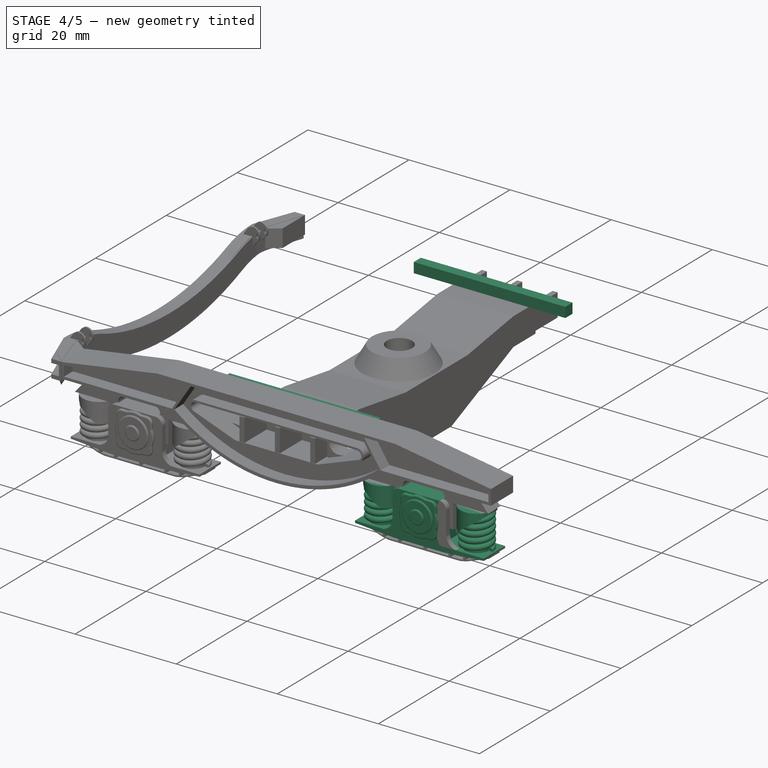
[diagram: stage 4 of 5 — iso view after this stage's code; geometry added in this stage tinted green]
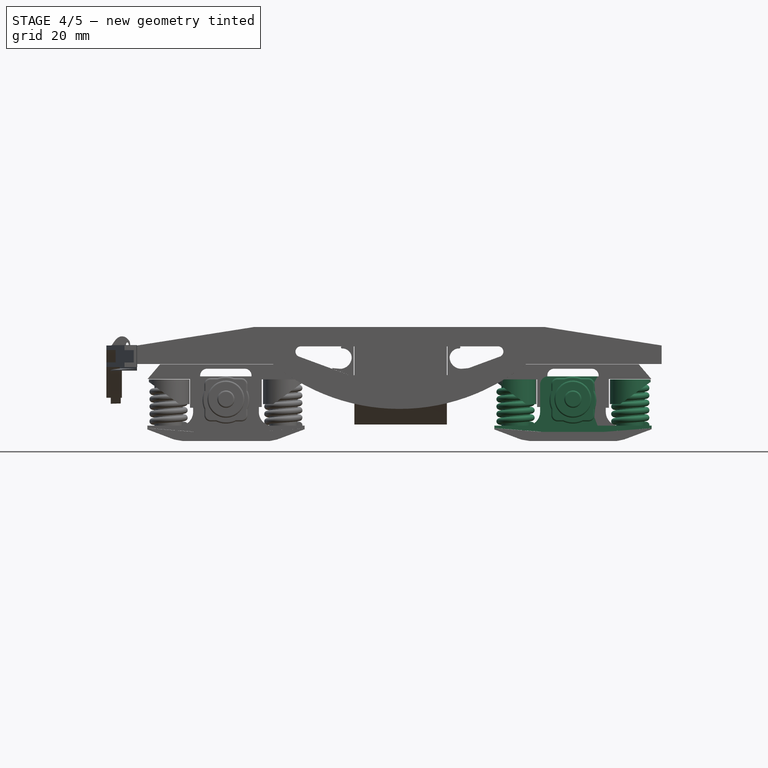
[diagram: stage 4 of 5 — front view after this stage's code; geometry added in this stage tinted green]
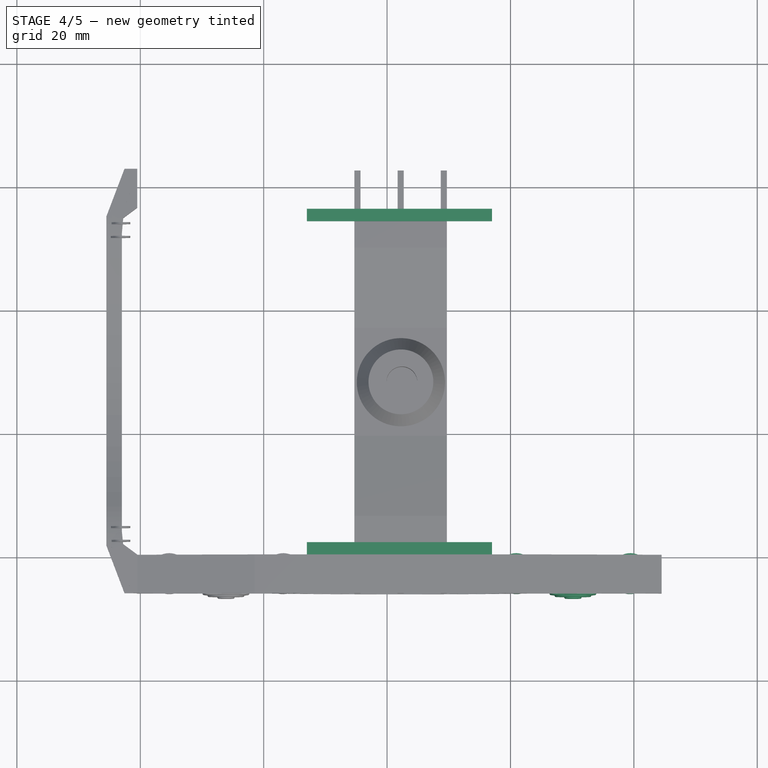
[diagram: stage 4 of 5 — top view after this stage's code; geometry added in this stage tinted green]
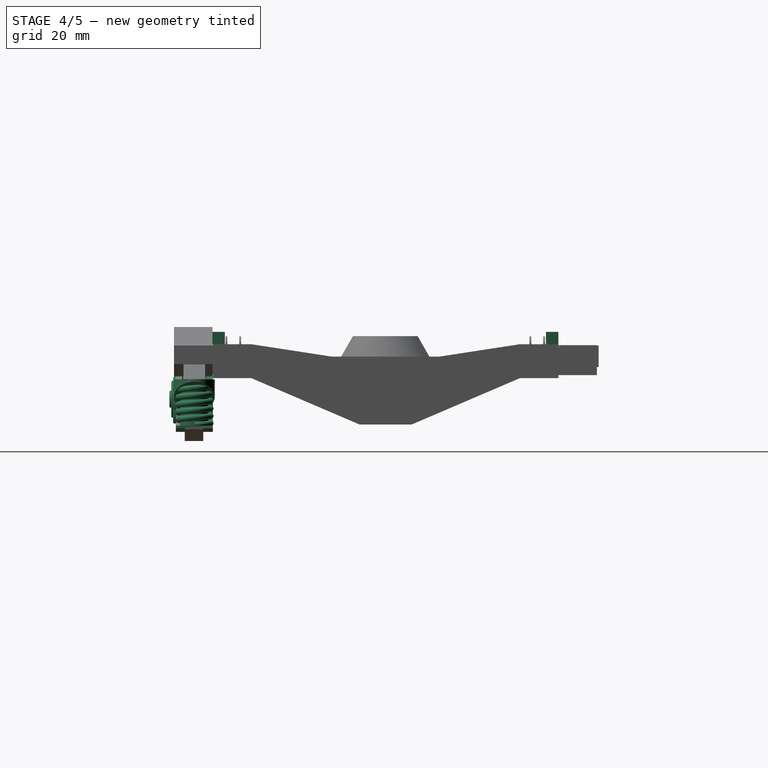
[diagram: stage 4 of 5 — right view after this stage's code; geometry added in this stage tinted green]
FEATURE [Sketcher::SketchObject] Sketch007
  FullyConstrained = false
  Placement = pos=(0,0,0) rot=(1,0,0;1.5708rad)
  sketch-geometry (10):
    g0: LineSegment StartX=66.0105 StartY=-2 StartZ=0 EndX=74.0105 EndY=-2 EndZ=0
    g1: LineSegment StartX=74.0105 StartY=-2 StartZ=0 EndX=74.0105 EndY=-9.99749 EndZ=0
    g2: LineSegment StartX=74.0105 StartY=-9.99749 StartZ=0 EndX=82.7605 EndY=-9.99749 EndZ=0
    g3: LineSegment StartX=75.1055 StartY=-10.9975 StartZ=0 EndX=65.061 EndY=-10.9975 EndZ=0
    g4: LineSegment StartX=57.2605 StartY=-9.99749 StartZ=0 EndX=66.0105 EndY=-9.99749 EndZ=0
    g5: LineSegment StartX=66.0105 StartY=-9.99749 StartZ=0 EndX=66.0105 EndY=-2 EndZ=0
    g6: LineSegment StartX=57.2605 StartY=-9.99749 StartZ=0 EndX=57.2605 EndY=-10.3975 EndZ=0
    g7: LineSegment StartX=57.2605 StartY=-10.3975 StartZ=0 EndX=65.061 EndY=-10.9975 EndZ=0
    g8: LineSegment StartX=75.1055 StartY=-10.9975 StartZ=0 EndX=82.7605 EndY=-10.3975 EndZ=0
    g9: LineSegment StartX=82.7605 StartY=-10.3975 StartZ=0 EndX=82.7605 EndY=-9.99749 EndZ=0
  constraints (25):
    c: Horizontal(g0)
    c: Coincident(g0,g1)
    c: Vertical(g1)
    c: Coincident(g1,g2)
    c: Horizontal(g2)
    c: Horizontal(g4)
    c: Coincident(g4,g5)
    c: Coincident(g5,g0)
    c: Vertical(g5)
    c: Equal(g5,g1)
    c: DistanceX(g0,g0) = 8
    c: Coincident(g6,g4)
    c: Vertical(g6)
    c: Coincident(g7,g6)
    c: Coincident(g7,g3)
    c: Coincident(g3,g8)
    c: Coincident(g8,g9)
    c: Coincident(g9,g2)
    c: Vertical(g9)
    c: Horizontal(g3)
    c: DistanceX(g1,g2) = 8.75
    c: DistanceX(g4,g4) = 8.75
    c: DistanceY(g3,g4) = 1
    c: DistanceY(g6,g4) = 0.4
    c: DistanceY(g8,g2) = 0.4
FEATURE [Part::Extrusion] Extrude012
  Base = -> Sketch007
  Dir = (0,-1,2e-16)
  DirMode = 2
  FaceMakerClass = Part::FaceMakerBullseye
  LengthFwd = 6
  LengthRev = 0
  Placement = pos=(0,-59.75,0) rot=(0,0,1;0rad)
  Solid = true
  Symmetric = false
FEATURE [Part::Box] Box  label="Cube"
  AttacherType = Attacher::AttachEngine3D
  Height = 2
  Length = 30
  Placement = pos=(27,-59.8,3.2) rot=(0,0,1;0rad)
  Width = 2
FEATURE [Part::Box] Box011  label="Cube011"
  AttacherType = Attacher::AttachEngine3D
  Height = 2
  Length = 30
  Placement = pos=(27,-5.75,3.2) rot=(0,0,1;0rad)
  Width = 2
FEATURE [Part::Cylinder] Cylinder042
  Angle = 360
  AttacherType = Attacher::AttachEngine3D
  FirstAngle = 0
  Height = 3
  Placement = pos=(70,-62.3,-7) rot=(-1,0,0;1.5708rad)
  Radius = 3.6
  SecondAngle = 0
FEATURE [Part::Helix] Helix
  Angle = 0
  AttacherType = Attacher::AttachEngine3D
  Height = 6.2
  LocalCoord = 0
  Pitch = 1.2
  Radius = 2.6
  SegmentLength = 0
  Style = 1
FEATURE [Sketcher::SketchObject] Sketch013
  FullyConstrained = true
  Placement = pos=(0,0,0) rot=(1,0,0;1.5708rad)
  sketch-geometry (1):
    g0: Circle CenterX=2.6 CenterY=0 CenterZ=0 NormalX=0 NormalY=0 NormalZ=1 AngleXU=0 Radius=0.5
  constraints (3):
    c: PointOnObject(g0,g-1)
    c: DistanceX(g-1,g0) = 2.6
    c: Radius(g0) = 0.5
FEATURE [Part::Sweep] Sweep
  Frenet = true
  Placement = pos=(60.7,-62.75,-9.9) rot=(0,0,1;0rad)
  Sections = -> [Sketch013]
  Solid = true
  Spine = -> Helix [Edge1]
  Transition = 1
FEATURE [Part::Helix] Helix001
  Angle = 0
  AttacherType = Attacher::AttachEngine3D
  Height = 6.2
  LocalCoord = 0
  Pitch = 1.2
  Radius = 2.6
  SegmentLength = 0
  Style = 1
FEATURE [Sketcher::SketchObject] Sketch014
  FullyConstrained = true
  Placement = pos=(0,0,0) rot=(1,0,0;1.5708rad)
  sketch-geometry (1):
    g0: Circle CenterX=2.6 CenterY=0 CenterZ=0 NormalX=0 NormalY=0 NormalZ=1 AngleXU=0 Radius=0.5
  constraints (3):
    c: PointOnObject(g0,g-1)
    c: DistanceX(g-1,g0) = 2.6
    c: Radius(g0) = 0.5
FEATURE [Part::Sweep] Sweep001
  Frenet = true
  Placement = pos=(79.3,-62.75,-9.9) rot=(0,0,1;0rad)
  Sections = -> [Sketch014]
  Solid = true
  Spine = -> Helix001 [Edge1]
  Transition = 1
FEATURE [Part::Cylinder] Cylinder049
  Angle = 360
  AttacherType = Attacher::AttachEngine3D
  FirstAngle = 0
  Height = 5
  Placement = pos=(70,-64.3,-7) rot=(-1,0,0;1.5708rad)
  Radius = 2
  SecondAngle = 0
FEATURE [Sketcher::SketchObject] Sketch019
  FullyConstrained = false
  Placement = pos=(0,0,0) rot=(1,0,0;1.5708rad)
  sketch-geometry (14):
    g0: LineSegment StartX=82.7104 StartY=-2.437 StartZ=0 EndX=80.6677 EndY=-0.042506 EndZ=0
    g1: LineSegment StartX=80.6677 StartY=-0.042506 StartZ=0 EndX=62.1647 EndY=-0.042506 EndZ=0
    g2: LineSegment StartX=62.1647 StartY=-0.042506 StartZ=0 EndX=58.5949 EndY=-2.49393 EndZ=0
    g3: LineSegment StartX=58.5949 StartY=-2.49393 StartZ=0 EndX=64.1986 EndY=-2.49393 EndZ=0
    g4: LineSegment StartX=64.1986 StartY=-2.49393 StartZ=0 EndX=64.1986 EndY=-6.97036 EndZ=0
    g5: LineSegment StartX=64.1986 StartY=-6.97036 StartZ=0 EndX=65.8527 EndY=-6.97036 EndZ=0
    g6: LineSegment StartX=65.8527 StartY=-6.97036 StartZ=0 EndX=65.8527 EndY=-1.92459 EndZ=0
    g7: LineSegment StartX=66.9648 StartY=-0.767347 StartZ=0 EndX=73.0988 EndY=-0.767347 EndZ=0
    g8: LineSegment StartX=74.1774 StartY=-1.90736 StartZ=0 EndX=74.1774 EndY=-7.09825 EndZ=0
    g9: LineSegment StartX=74.1774 StartY=-7.09825 StartZ=0 EndX=75.8264 EndY=-7.09825 EndZ=0
    g10: LineSegment StartX=75.8264 StartY=-7.09825 StartZ=0 EndX=75.8264 EndY=-2.437 EndZ=0
    g11: LineSegment StartX=75.8264 StartY=-2.437 StartZ=0 EndX=82.7104 EndY=-2.437 EndZ=0
    g12: ArcOfCircle CenterX=66.9648 CenterY=-1.88039 CenterZ=0 NormalX=0 NormalY=0 NormalZ=1 AngleXU=0 Radius=1.11304 StartAngle=1.5708 EndAngle=3.18131
    g13: ArcOfCircle CenterX=73.0356 CenterY=-1.90736 CenterZ=0 NormalX=0 NormalY=0 NormalZ=1 AngleXU=0 Radius=1.14176 StartAngle=0 EndAngle=1.51541
  constraints (24):
    c: Coincident(g0,g1)
    c: Horizontal(g1)
    c: Coincident(g1,g2)
    c: Coincident(g2,g3)
    c: Horizontal(g3)
    c: Coincident(g3,g4)
    c: Vertical(g4)
    c: Coincident(g4,g5)
    c: Horizontal(g5)
    c: Coincident(g5,g6)
    c: Vertical(g6)
    c: Horizontal(g7)
    c: Vertical(g8)
    c: Coincident(g8,g9)
    c: Horizontal(g9)
    c: Coincident(g9,g10)
    c: Vertical(g10)
    c: Coincident(g10,g11)
    c: Coincident(g11,g0)
    c: Horizontal(g11)
    c: Coincident(g12,g6)
    c: Coincident(g13,g7)
    c: Tangent(g13,g8) = 1.5708
    c: Tangent(g12,g7) = 1.5708
FEATURE [Part::Cylinder] Cylinder050
  Angle = 360
  AttacherType = Attacher::AttachEngine3D
  FirstAngle = 0
  Height = 0.3
  Placement = pos=(70,-0.8,-5.7) rot=(1,0,0;1.5708rad)
  Radius = 1.4
  SecondAngle = 0
FEATURE [Part::Cylinder] Cylinder051
  Angle = 360
  AttacherType = Attacher::AttachEngine3D
  FirstAngle = 0
  Height = 0.3
  Placement = pos=(70,-0.5,-5.7) rot=(1,0,0;1.5708rad)
  Radius = 3
  SecondAngle = 0
FEATURE [Part::Cylinder] Cylinder052
  Angle = 360
  AttacherType = Attacher::AttachEngine3D
  FirstAngle = 0
  Height = 0.5
  Placement = pos=(70,0,-5.85) rot=(1,0,0;1.5708rad)
  Radius = 3.8
  SecondAngle = 0
FEATURE [Part::Box] Box018  label="Cube018"
  AttacherType = Attacher::AttachEngine3D
  Height = 7
  Length = 7
  Placement = pos=(66.5,-0.5,-9.3) rot=(0,0,1;0rad)
  Width = 0.5
FEATURE [Part::MultiFuse] Fusion020
  Shapes = -> [Cylinder052,Box018,Cylinder051,Cylinder050]
FEATURE [Part::Fillet] Fillet
  Base = -> Fusion020
  Edges = 4 edges r=1: [Edge8,Edge33,Edge55,Edge58]
FEATURE [Part::Fillet] Fillet001
  Base = -> Fillet
  Edges = 1 edges r=0.25: [Edge47]
FEATURE [Part::Fillet] Fillet002
  Base = -> Fillet001
  Edges = 1 edges r=0.25: [Edge33]
FEATURE [Part::Fillet] Fillet003  label="Abdeckung"
  Base = -> Fillet002
  Edges = 16 edges r=0.25: [Edge19,Edge21,Edge22,Edge23,Edge24,Edge25,Edge26,Edge27,Edge28,Edge29,Edge30,Edge31,Edge32,Edge33,Edge34,Edge35]
  Placement = pos=(0,-65.7,0) rot=(0,0,1;0rad)
FEATURE [Part::Cylinder] Cylinder056
  Angle = 360
  AttacherType = Attacher::AttachEngine3D
  FirstAngle = 0
  Height = 4
  Placement = pos=(79.3,-62.75,-2.5) rot=(0,1,0;3.14159rad)
  Radius = 3.3
  SecondAngle = 0
FEATURE [Part::Cylinder] Cylinder058
  Angle = 360
  AttacherType = Attacher::AttachEngine3D
  FirstAngle = 0
  Height = 3
  Placement = pos=(79.6864,-62.75,-5.0153) rot=(0,-1,0;3.76991rad)
  Radius = 4.3
  SecondAngle = 0
FEATURE [Part::Cut] Cut045
  Base = -> Cylinder056
  Tool = -> Cylinder058
FEATURE [Part::Cylinder] Cylinder059
  Angle = 360
  AttacherType = Attacher::AttachEngine3D
  FirstAngle = 0
  Height = 4
  Placement = pos=(79.3,-62.75,-2.5) rot=(0,1,0;3.14159rad)
  Radius = 3.3
  SecondAngle = 0
FEATURE [Part::Cylinder] Cylinder060
  Angle = 360
  AttacherType = Attacher::AttachEngine3D
  FirstAngle = 0
  Height = 3
  Placement = pos=(79.6864,-62.75,-5.0153) rot=(0,-1,0;3.76991rad)
  Radius = 4.3
  SecondAngle = 0
FEATURE [Part::Cut] Cut046
  Base = -> Cylinder059
  Placement = pos=(140.1,-125.5,0) rot=(0,0,1;3.14159rad)
  Tool = -> Cylinder060
FEATURE [Part::Cylinder] Cylinder061
  Angle = 360
  AttacherType = Attacher::AttachEngine3D
  FirstAngle = 0
  Height = 7
  Placement = pos=(60.7,-62.75,-10) rot=(0,0,1;0rad)
  Radius = 2.3
  SecondAngle = 0
FEATURE [Part::Cylinder] Cylinder062
  Angle = 360
  AttacherType = Attacher::AttachEngine3D
  FirstAngle = 0
  Height = 7
  Placement = pos=(79.3,-62.75,-10) rot=(0,0,1;0rad)
  Radius = 2.3
  SecondAngle = 0
FEATURE [Part::MultiFuse] Fusion031
  Shapes = -> [Cut046,Sweep,Cylinder061]
FEATURE [Part::MultiFuse] Fusion032
  Shapes = -> [Sweep001,Cylinder062,Cut045]
FEATURE [Image::ImagePlane] ImagePlane
  Placement = pos=(42,-31.7,-9) rot=(0,0,1;4.71239rad)
  XSize = 75.0986
  YSize = 101.556
FEATURE [Sketcher::SketchObject] Sketch029
  FullyConstrained = false
  Placement = pos=(0,0,0) rot=(1,0,0;1.5708rad)
  sketch-geometry (5):
    g0: LineSegment StartX=64.8097 StartY=-3.13934 StartZ=0 EndX=64.8097 EndY=-7.57236 EndZ=0
    g1: LineSegment StartX=62.9397 StartY=-9.80934 StartZ=0 EndX=66.1397 EndY=-9.80934 EndZ=0
    g2: LineSegment StartX=66.1397 StartY=-9.80934 StartZ=0 EndX=66.1397 EndY=-1.80934 EndZ=0
    g3: ArcOfCircle CenterX=62.5367 CenterY=-7.57236 CenterZ=0 NormalX=0 NormalY=0 NormalZ=1 AngleXU=0 Radius=2.27299 StartAngle=4.89063 EndAngle=6.28319
    g4: ArcOfCircle CenterX=66.1411 CenterY=-3.14078 CenterZ=0 NormalX=0 NormalY=0 NormalZ=1 AngleXU=0 Radius=1.33143 StartAngle=1.57187 EndAngle=3.14052
  constraints (13):
    c: Vertical(g0)
    c: Horizontal(g1)
    c: Coincident(g1,g2)
    c: Vertical(g2)
    c: DistanceY(g1,g2) = 8
    c: DistanceX(g0,g2) = 1.33
    c: DistanceX(g1,g1) = 3.2
    c: Coincident(g3,g0)
    c: Coincident(g3,g1)
    c: Horizontal(g3,g0)
    c: DistanceY(g0,g2) = 1.33
    c: Coincident(g4,g2)
    c: Coincident(g4,g0)
FEATURE [Part::Extrusion] Extrude043
  Base = -> Sketch029
  Dir = (0,-1,-3e-16)
  DirMode = 2
  FaceMakerClass = Part::FaceMakerBullseye
  LengthFwd = 1
  LengthRev = 0
  Placement = pos=(-0.13,-59.75,-0.19) rot=(0,0,1;0rad)
  Solid = true
  Symmetric = false
FEATURE [Part::Cut] Cut
  Base = -> Extrude012
  Tool = -> Cylinder042
FEATURE [Part::Cut] Cut052
  Base = -> Cut
  Tool = -> Cylinder049
FEATURE [Part::Extrusion] Extrude044
  Base = -> Sketch029
  Dir = (0,-1,-3e-16)
  DirMode = 2
  FaceMakerClass = Part::FaceMakerBullseye
  LengthFwd = 1
  LengthRev = 0
  Placement = pos=(-0.13,-64.75,-0.19) rot=(0,0,1;0rad)
  Solid = true
  Symmetric = false
FEATURE [Part::Extrusion] Extrude045
  Base = -> Sketch029
  Dir = (0,-1,-3e-16)
  DirMode = 2
  FaceMakerClass = Part::FaceMakerBullseye
  LengthFwd = 1
  LengthRev = 0
  Placement = pos=(140.14,-60.75,-0.19) rot=(0,0,1;3.14159rad)
  Solid = true
  Symmetric = false
FEATURE [Part::MultiFuse] Fusion047  label="Radtraeger002"
  Placement = pos=(0.12,0,0) rot=(0,0,1;0rad)
  Shapes = -> [Cut052,Extrude044,Extrude043,Extrude045,Extrude046,Fusion046,Fillet003,Fusion031,Fusion032]
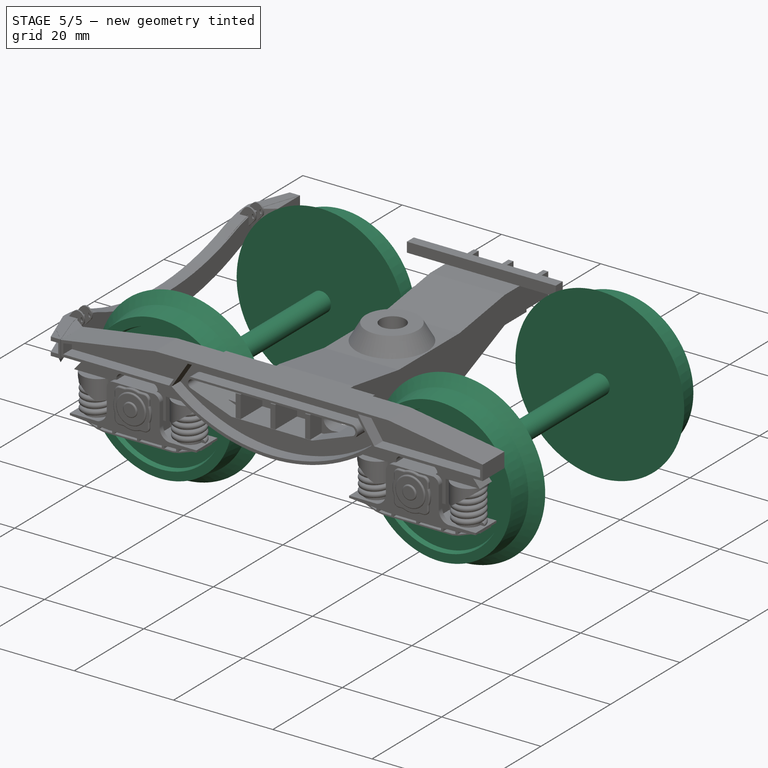
[diagram: stage 5 of 5 — iso view after this stage's code; geometry added in this stage tinted green]
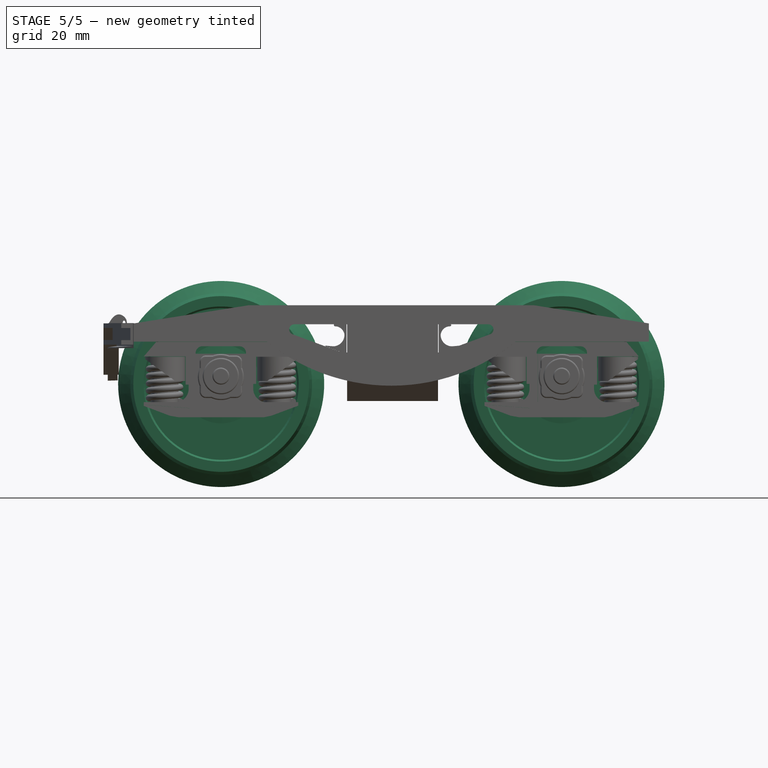
[diagram: stage 5 of 5 — front view after this stage's code; geometry added in this stage tinted green]
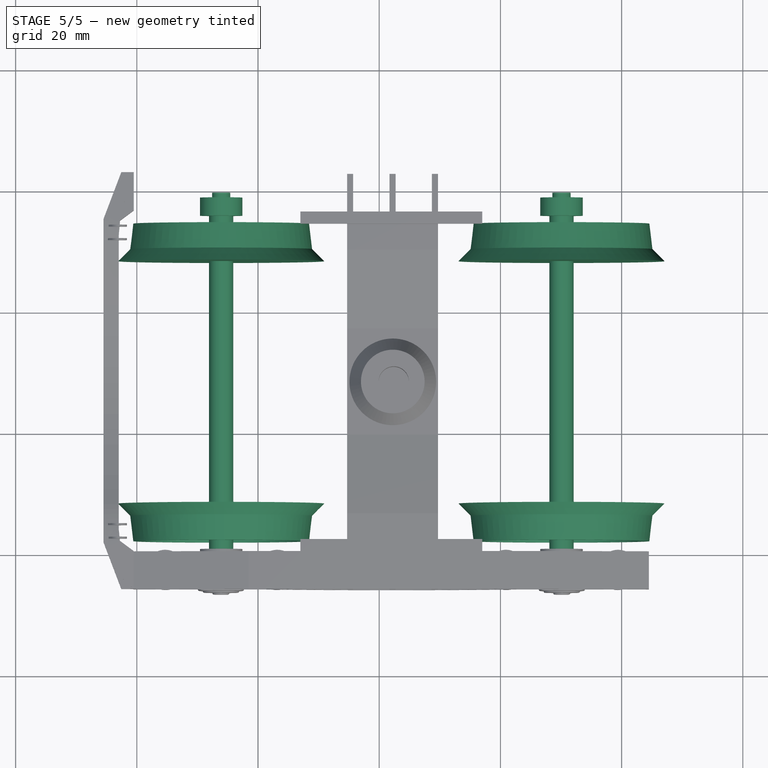
[diagram: stage 5 of 5 — top view after this stage's code; geometry added in this stage tinted green]
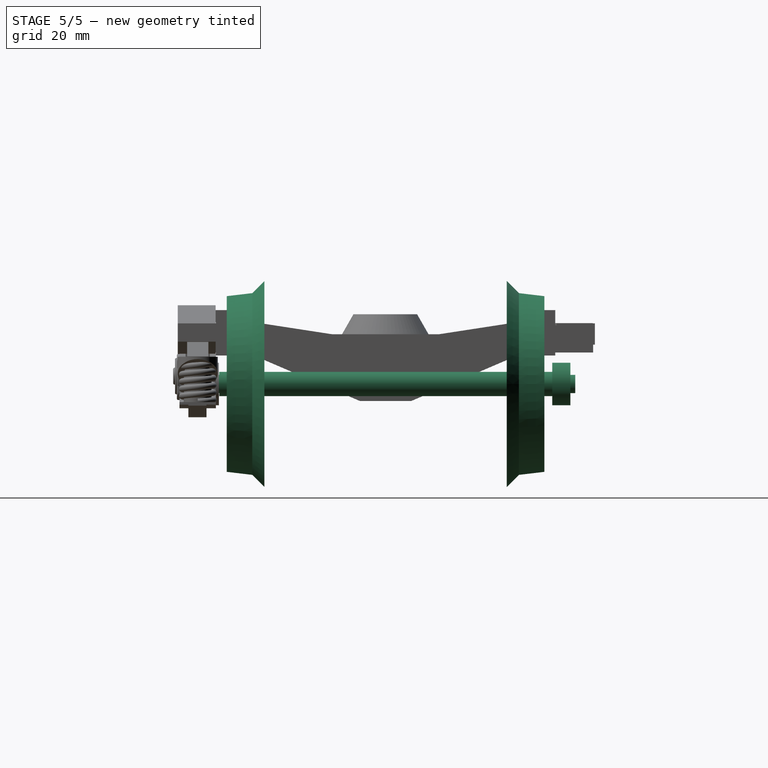
[diagram: stage 5 of 5 — right view after this stage's code; geometry added in this stage tinted green]
FEATURE [Part::Cylinder] Cylinder014
  Angle = 360
  AttacherType = Attacher::AttachEngine3D
  FirstAngle = 0
  Height = 3
  Radius = 3.5
  SecondAngle = 0
FEATURE [Part::Cylinder] Cylinder015
  Angle = 360
  AttacherType = Attacher::AttachEngine3D
  FirstAngle = 0
  Height = 3
  Radius = 1.5
  SecondAngle = 0
FEATURE [Part::Cut] Cut009  label="Kugellager001"
  Base = -> Cylinder014
  Placement = pos=(0,10.5,0) rot=(1,0,0;1.5708rad)
  Tool = -> Cylinder015
FEATURE [Sketcher::SketchObject] Sketch005
  FullyConstrained = true
  sketch-geometry (9):
    g0: LineSegment StartX=0 StartY=0 StartZ=0 EndX=17 EndY=0 EndZ=0
    g1: LineSegment StartX=17 StartY=0 StartZ=0 EndX=15 EndY=2 EndZ=0
    g2: LineSegment StartX=15 StartY=2 StartZ=0 EndX=14.5 EndY=6.2 EndZ=0
    g3: LineSegment StartX=14.5 StartY=6.2 StartZ=0 EndX=12.8 EndY=6.2 EndZ=0
    g4: LineSegment StartX=12.8 StartY=6.2 StartZ=0 EndX=12.5 EndY=5.25 EndZ=0
    g5: LineSegment StartX=12.5 StartY=5.25 StartZ=0 EndX=6.5 EndY=5.25 EndZ=0
    g6: LineSegment StartX=6.5 StartY=5.25 StartZ=0 EndX=4.5 EndY=5.5 EndZ=0
    g7: LineSegment StartX=4.5 StartY=5.5 StartZ=0 EndX=0 EndY=5.5 EndZ=0
    g8: LineSegment StartX=0 StartY=5.5 StartZ=0 EndX=0 EndY=0 EndZ=0
  constraints (26):
    c: Coincident(g-1,g0)
    c: PointOnObject(g0,g-1)
    c: Coincident(g0,g1)
    c: Coincident(g1,g2)
    c: Coincident(g2,g3)
    c: Horizontal(g3)
    c: Coincident(g3,g4)
    c: Coincident(g4,g5)
    c: Horizontal(g5)
    c: Coincident(g5,g6)
    c: Coincident(g6,g7)
    c: PointOnObject(g7,g-2)
    c: Horizontal(g7)
    c: Coincident(g7,g8)
    c: Coincident(g8,g0)
    c: DistanceX(g0,g0) = 17
    c: DistanceX(g0,g1) = 15
    c: DistanceY(g0,g1) = 2
    c: DistanceY(g0,g2) = 6.2
    c: DistanceX(g3,g2) = 1.7
    c: DistanceX(g0,g2) = 14.5
    c: DistanceY(g0,g7) = 5.5
    c: DistanceY(g0,g5) = 5.25
    c: DistanceX(g0,g4) = 12.5
    c: DistanceX(g7,g6) = 4.5
    c: DistanceX(g6,g5) = 2
FEATURE [Part::Revolution] Revolve001
  Angle = 360
  Axis = (0,-1,0)
  AxisLink = -> Sketch005 [Edge9]
  Base = (0,0,0)
  FaceMakerClass = Part::FaceMakerBullseye
  Solid = true
  Source = -> Sketch005
  Symmetric = false
FEATURE [Part::Cylinder] Cylinder016
  Angle = 360
  AttacherType = Attacher::AttachEngine3D
  FirstAngle = 0
  Height = 10
  Placement = pos=(0,8,0) rot=(1,0,0;1.5708rad)
  Radius = 2
  SecondAngle = 0
FEATURE [Part::Cut] Cut010  label="Rad1"
  Base = -> Revolve001
  Tool = -> Cylinder016
FEATURE [Part::Cylinder] Cylinder017
  Angle = 360
  AttacherType = Attacher::AttachEngine3D
  FirstAngle = 0
  Height = 10
  Placement = pos=(0,8,0) rot=(1,0,0;1.5708rad)
  Radius = 2
  SecondAngle = 0
FEATURE [Part::Revolution] Revolve002
  Angle = 360
  Axis = (0,-1,0)
  AxisLink = -> Sketch005 [Edge9]
  Base = (0,0,0)
  FaceMakerClass = Part::FaceMakerBullseye
  Solid = true
  Source = -> Sketch005
  Symmetric = false
FEATURE [Part::Cut] Cut011  label="Rad002"
  Base = -> Revolve002
  Placement = pos=(0,-40,0) rot=(0,0,1;3.14159rad)
  Tool = -> Cylinder017
FEATURE [Part::Cylinder] Cylinder018
  Angle = 360
  AttacherType = Attacher::AttachEngine3D
  FirstAngle = 0
  Height = 3
  Radius = 3.5
  SecondAngle = 0
FEATURE [Part::Cylinder] Cylinder019
  Angle = 360
  AttacherType = Attacher::AttachEngine3D
  FirstAngle = 0
  Height = 3
  Radius = 1.5
  SecondAngle = 0
FEATURE [Part::Cut] Cut012  label="Kugellager002"
  Base = -> Cylinder018
  Placement = pos=(0,-47.5,0) rot=(1,0,0;1.5708rad)
  Tool = -> Cylinder019
FEATURE [Part::Cylinder] Cylinder020
  Angle = 360
  AttacherType = Attacher::AttachEngine3D
  FirstAngle = 0
  Height = 55
  Placement = pos=(0,0,3.75) rot=(0,0,1;0rad)
  Radius = 2
  SecondAngle = 0
FEATURE [Part::Cylinder] Cylinder021
  Angle = 360
  AttacherType = Attacher::AttachEngine3D
  FirstAngle = 0
  Height = 62.5
  Radius = 1.5
  SecondAngle = 0
FEATURE [Part::MultiFuse] Fusion009  label="Achse002"
  Placement = pos=(0,11.3,0) rot=(1,0,0;1.5708rad)
  Shapes = -> [Cylinder020,Cylinder021]
FEATURE [Part::Cylinder] Cylinder029
  Angle = 360
  AttacherType = Attacher::AttachEngine3D
  FirstAngle = 0
  Height = 3
  Radius = 3.5
  SecondAngle = 0
FEATURE [Part::Cylinder] Cylinder030
  Angle = 360
  AttacherType = Attacher::AttachEngine3D
  FirstAngle = 0
  Height = 3
  Radius = 1.5
  SecondAngle = 0
FEATURE [Part::Cut] Cut019  label="Kugellager003"
  Base = -> Cylinder029
  Placement = pos=(0,10.5,0) rot=(1,0,0;1.5708rad)
  Tool = -> Cylinder030
FEATURE [Part::Cylinder] Cylinder031
  Angle = 360
  AttacherType = Attacher::AttachEngine3D
  FirstAngle = 0
  Height = 10
  Placement = pos=(0,8,0) rot=(1,0,0;1.5708rad)
  Radius = 2
  SecondAngle = 0
FEATURE [Part::Cylinder] Cylinder032
  Angle = 360
  AttacherType = Attacher::AttachEngine3D
  FirstAngle = 0
  Height = 10
  Placement = pos=(0,8,0) rot=(1,0,0;1.5708rad)
  Radius = 2
  SecondAngle = 0
FEATURE [Part::Cylinder] Cylinder033
  Angle = 360
  AttacherType = Attacher::AttachEngine3D
  FirstAngle = 0
  Height = 3
  Radius = 3.5
  SecondAngle = 0
FEATURE [Part::Cylinder] Cylinder034
  Angle = 360
  AttacherType = Attacher::AttachEngine3D
  FirstAngle = 0
  Height = 3
  Radius = 1.5
  SecondAngle = 0
FEATURE [Part::Cut] Cut022  label="Kugellager004"
  Base = -> Cylinder033
  Placement = pos=(0,-47.5,0) rot=(1,0,0;1.5708rad)
  Tool = -> Cylinder034
FEATURE [Part::Cylinder] Cylinder035
  Angle = 360
  AttacherType = Attacher::AttachEngine3D
  FirstAngle = 0
  Height = 55
  Placement = pos=(0,0,3.75) rot=(0,0,1;0rad)
  Radius = 2
  SecondAngle = 0
FEATURE [Part::Cylinder] Cylinder036
  Angle = 360
  AttacherType = Attacher::AttachEngine3D
  FirstAngle = 0
  Height = 62.5
  Radius = 1.5
  SecondAngle = 0
FEATURE [Part::MultiFuse] Fusion012  label="Achse003"
  Placement = pos=(0,11.3,0) rot=(1,0,0;1.5708rad)
  Shapes = -> [Cylinder035,Cylinder036]
FEATURE [Part::Revolution] Revolve003
  Angle = 360
  Axis = (0,-1,0)
  AxisLink = -> Sketch005 [Edge9]
  Base = (0,0,0)
  FaceMakerClass = Part::FaceMakerBullseye
  Solid = true
  Source = -> Sketch005
  Symmetric = false
FEATURE [Part::Cut] Cut020  label="Rad003"
  Base = -> Revolve003
  Tool = -> Cylinder031
FEATURE [Part::Revolution] Revolve004
  Angle = 360
  Axis = (0,-1,0)
  AxisLink = -> Sketch005 [Edge9]
  Base = (0,0,0)
  FaceMakerClass = Part::FaceMakerBullseye
  Solid = true
  Source = -> Sketch005
  Symmetric = false
FEATURE [Part::Cut] Cut021  label="Rad004"
  Base = -> Revolve004
  Placement = pos=(0,-40,0) rot=(0,0,1;3.14159rad)
  Tool = -> Cylinder032
FEATURE [Part::MultiFuse] Fusion013  label="Radsatz002"
  Placement = pos=(70.08,-11.75,-7) rot=(0,0,1;0rad)
  Shapes = -> [Cut020,Cut021,Cut022,Cut019,Fusion012]
FEATURE [Part::MultiFuse] Fusion011  label="Radsatz001"
  Placement = pos=(13.92,-11.75,-7) rot=(0,0,1;0rad)
  Shapes = -> [Cut010,Cut011,Cut012,Cut009,Fusion009]
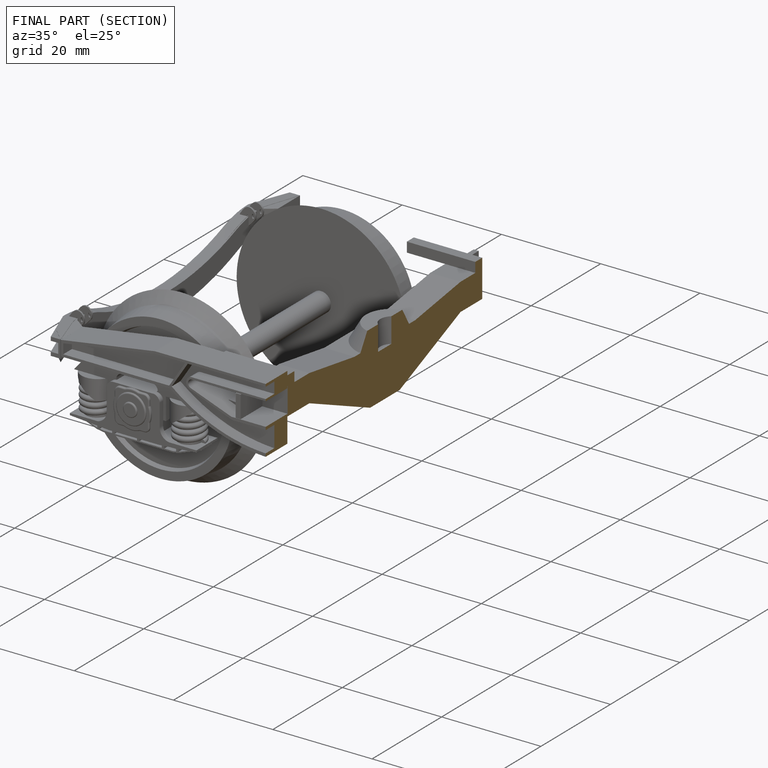
[diagram: finished part — half-section view (interior)]
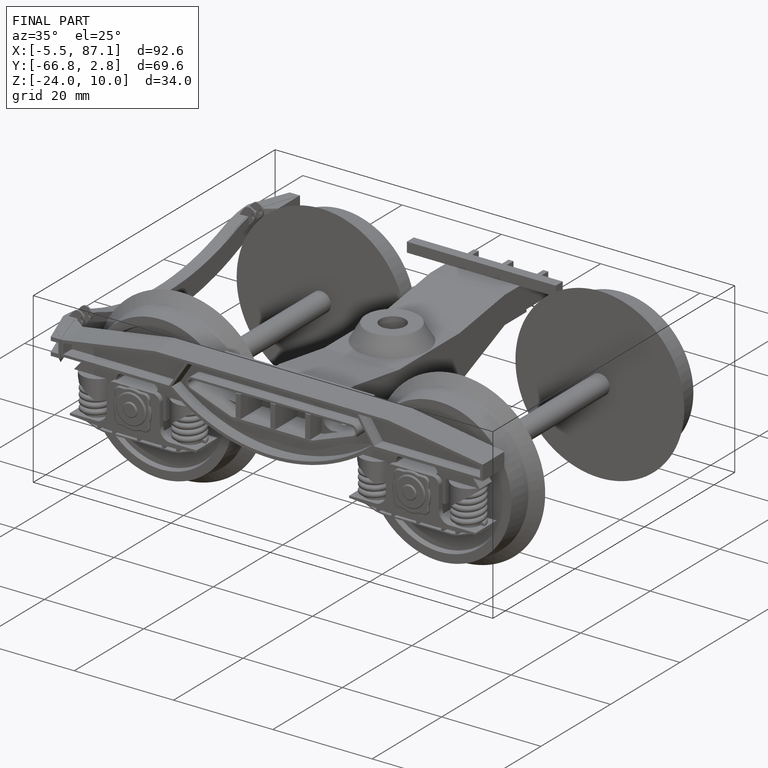
[diagram: finished part — iso view with bounding-box wireframe]
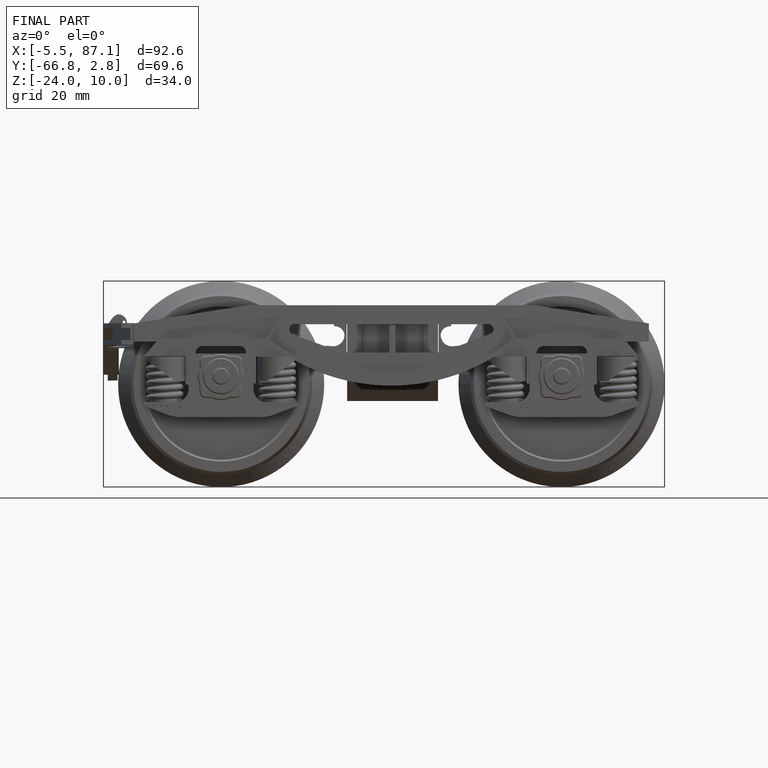
[diagram: finished part — front view with bounding-box wireframe]
